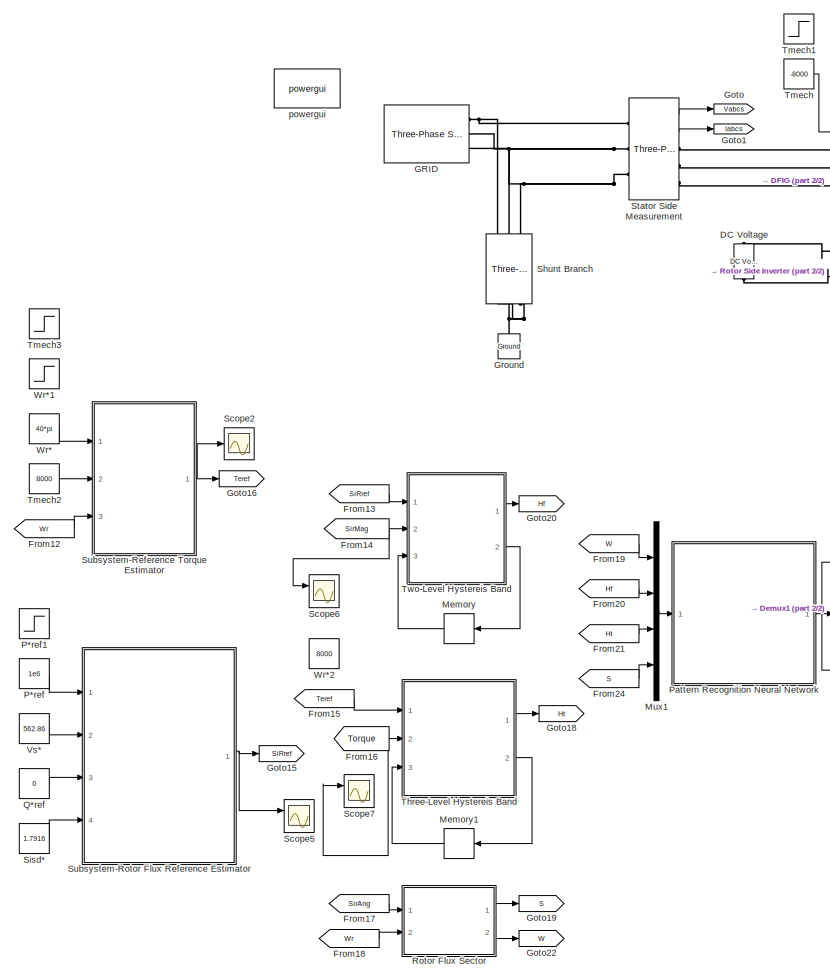
[diagram: root canvas - part 1/2, left side, full height]
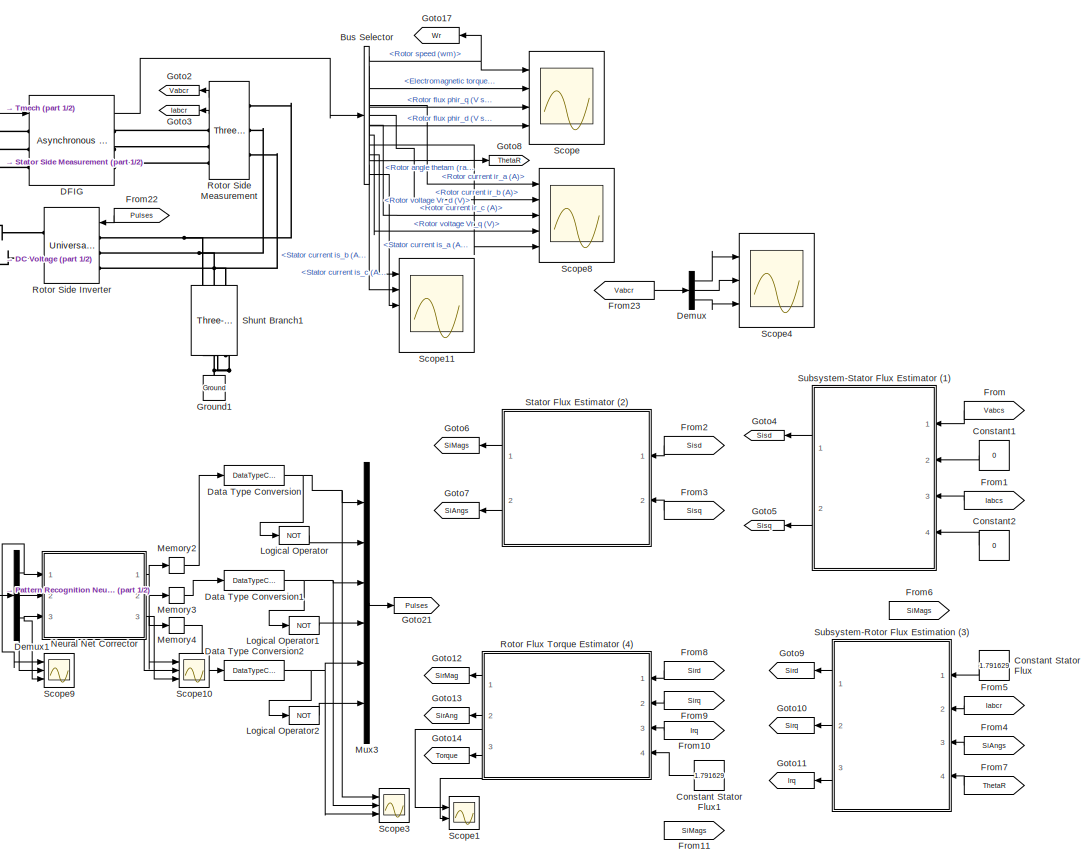
[diagram: root canvas - part 2/2, right side, full height]
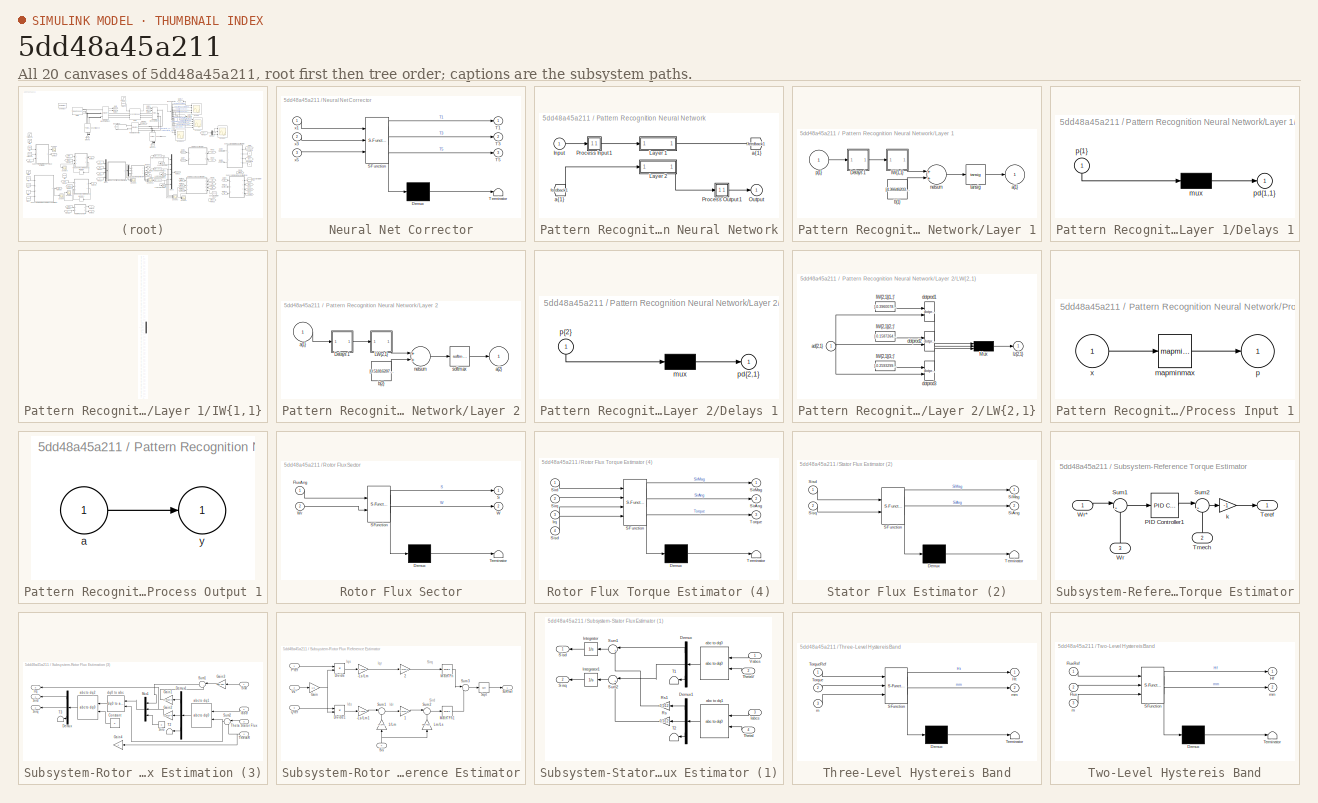
[diagram: thumbnail index - all 20 canvases of the model, root first then tree order]
MODEL slx_5dd48a45a211
KIND model
BLOCK [BusSelector] Bus Selector
  OutputSignals = Mechanical.Rotor speed (wm),Mechanical.Electromagnetic torque Te (N*m),Rotor measurements.Rotor flux phir_q (V s),Rotor measurements.Rotor flux phir_d (V s),Mechanical.Rotor angle thetam (rad),Rotor measurements.Rotor current ir_a (A),Rotor measurements.Rotor current ir_b (A),Rotor measurements.Rotor current ir_c (A),Rotor measurements.Rotor voltage Vr_q (V),Rotor measurements.Rotor voltage Vr_d (...<+134ch>
  Ports = [1, 13]
BLOCK [Constant] Constant Stator Flux
  Value = 1.791629
BLOCK [Constant] Constant Stator Flux1
  Value = 1.791629
BLOCK [Constant] Constant1
  Value = 0
BLOCK [Constant] Constant2
  Value = 0
BLOCK [Reference] DC Voltage  REF=powerlib/Electrical
Sources/DC Voltage Source
  Amplitude = 1200
  Measurements = None
  Ports = [0, 0, 0, 0, 0, 1, 1]
  SourceBlock = powerlib/Electrical\nSources/DC Voltage Source
  SourceType = DC Voltage Source
BLOCK [Reference] DFIG  REF=powerlib/Machines/Asynchronous Machine
SI Units
  AttributesFormatString = \n
  Cage1 = [ 0.022 0.226/377]
  Cage2 = [ 0.022 0.226/377]
  InitialConditions = [1 0 0 0 0 0 0 0]
  IterativeModel = Trapezoidal non iterative
  Lm = 0.0135
  LoadFlowParameters = 1492000
  MeasurementBus = off
  Mechanical = [1000 30 2]
  MechanicalLoad = Torque Tm
  NominalParameters = [1.5e+06 690 50]
  Pmec = 0
  PolePairs = 2
  Ports = [1, 1, 0, 0, 0, 3, 3]
  PresetModel = No
  ReferenceFrame = Rotor
  Rotor = [0.021 0.0136]
  RotorType = Wound
  Saturation = [14.03593122, 27.81365428, 53.79336849, 72.68890987, 97.98006896, 148.6815601, 215.7428561, 302.9841135, 420.4778367 ; 230, 322, 414, 460, 506, 552, 598, 644, 690]
  ShowDetailedParameters = on
  SimulateSaturation = off
  SourceBlock = powerlib/Machines/Asynchronous Machine\nSI Units
  SourceType = Asynchronous Machine
  Stator = [0.012 0.0137]
  TsBlock = -1
  TsPowergui = 0
  Units = SI
BLOCK [DataTypeConversion] Data Type Conversion
  OutDataTypeStr = boolean
  RndMeth = Floor
  SaturateOnIntegerOverflow = off
BLOCK [DataTypeConversion] Data Type Conversion1
  OutDataTypeStr = boolean
  RndMeth = Floor
  SaturateOnIntegerOverflow = off
BLOCK [DataTypeConversion] Data Type Conversion2
  OutDataTypeStr = boolean
  RndMeth = Floor
  SaturateOnIntegerOverflow = off
BLOCK [Demux] Demux
  DisplayOption = bar
  Outputs = 3
  Ports = [1, 3]
BLOCK [Demux] Demux1
  DisplayOption = bar
  Outputs = 3
  Ports = [1, 3]
BLOCK [From] From
  GotoTag = Vabcs
  TagVisibility = global
BLOCK [From] From1
  GotoTag = Iabcs
  TagVisibility = global
BLOCK [From] From10
  GotoTag = Irq
  TagVisibility = global
BLOCK [From] From11
  GotoTag = SiMags
  TagVisibility = global
BLOCK [From] From12
  GotoTag = Wr
  TagVisibility = global
BLOCK [From] From13
  GotoTag = SiRref
  TagVisibility = global
BLOCK [From] From14
  GotoTag = SirMag
  TagVisibility = global
BLOCK [From] From15
  GotoTag = Teref
  TagVisibility = global
BLOCK [From] From16
  GotoTag = Torque
  TagVisibility = global
BLOCK [From] From17
  GotoTag = SirAng
  TagVisibility = global
BLOCK [From] From18
  GotoTag = Wr
  TagVisibility = global
BLOCK [From] From19
  GotoTag = W
  TagVisibility = global
BLOCK [From] From2
  GotoTag = Sisd
  TagVisibility = global
BLOCK [From] From20
  GotoTag = Hf
  TagVisibility = global
BLOCK [From] From21
  GotoTag = Ht
  TagVisibility = global
BLOCK [From] From22
  GotoTag = Pulses
  TagVisibility = global
BLOCK [From] From23
  GotoTag = Vabcr
  TagVisibility = global
BLOCK [From] From24
  GotoTag = S
  TagVisibility = global
BLOCK [From] From3
  GotoTag = Sisq
  TagVisibility = global
BLOCK [From] From4
  GotoTag = SiAngs
  TagVisibility = global
BLOCK [From] From5
  GotoTag = Iabcr
  TagVisibility = global
BLOCK [From] From6
  GotoTag = SiMags
  TagVisibility = global
BLOCK [From] From7
  GotoTag = ThetaR
  TagVisibility = global
BLOCK [From] From8
  GotoTag = Sird
  TagVisibility = global
BLOCK [From] From9
  GotoTag = Sirq
  TagVisibility = global
BLOCK [Reference] GRID  REF=powerlib/Electrical
Sources/Three-Phase Source
  BaseVoltage = 398
  BusType = swing
  Frequency = 50
  Inductance = 0
  InternalConnection = Yg
  PhaseAngle = 0
  Ports = [0, 0, 0, 0, 0, 0, 3]
  Pref = 0
  Qmax = inf
  Qmin = -inf
  Qref = 0
  Resistance = 0
  ShortCircuitLevel = 100e6
  SourceBlock = powerlib/Electrical\nSources/Three-Phase Source
  SourceType = Three-Phase Source
  SpecifyImpedance = off
  Voltage = 25e3
  XRratio = 7
BLOCK [Goto] Goto
  GotoTag = Vabcs
  TagVisibility = global
BLOCK [Goto] Goto1
  GotoTag = Iabcs
  TagVisibility = global
BLOCK [Goto] Goto10
  GotoTag = Sirq
  TagVisibility = global
BLOCK [Goto] Goto11
  GotoTag = Irq
  TagVisibility = global
BLOCK [Goto] Goto12
  GotoTag = SirMag
  TagVisibility = global
BLOCK [Goto] Goto13
  GotoTag = SirAng
  TagVisibility = global
BLOCK [Goto] Goto14
  GotoTag = Torque
  TagVisibility = global
BLOCK [Goto] Goto15
  GotoTag = SiRref
  TagVisibility = global
BLOCK [Goto] Goto16
  GotoTag = Teref
  TagVisibility = global
BLOCK [Goto] Goto17
  GotoTag = Wr
  TagVisibility = global
BLOCK [Goto] Goto18
  GotoTag = Ht
  TagVisibility = global
BLOCK [Goto] Goto19
  GotoTag = S
  TagVisibility = global
BLOCK [Goto] Goto2
  GotoTag = Vabcr
  TagVisibility = global
BLOCK [Goto] Goto20
  GotoTag = Hf
  TagVisibility = global
BLOCK [Goto] Goto21
  GotoTag = Pulses
  TagVisibility = global
BLOCK [Goto] Goto22
  GotoTag = W
  TagVisibility = global
BLOCK [Goto] Goto3
  GotoTag = Iabcr
  TagVisibility = global
BLOCK [Goto] Goto4
  GotoTag = Sisd
  TagVisibility = global
BLOCK [Goto] Goto5
  GotoTag = Sisq
  TagVisibility = global
BLOCK [Goto] Goto6
  GotoTag = SiMags
  TagVisibility = global
BLOCK [Goto] Goto7
  GotoTag = SiAngs
  TagVisibility = global
BLOCK [Goto] Goto8
  GotoTag = ThetaR
  TagVisibility = global
BLOCK [Goto] Goto9
  GotoTag = Sird
  TagVisibility = global
BLOCK [Reference] Ground  REF=powerlib/Elements/Ground
  LConnTagsString = a
  Ports = [0, 0, 0, 0, 0, 1]
  SourceBlock = powerlib/Elements/Ground
  SourceType = Ground
BLOCK [Reference] Ground1  REF=powerlib/Elements/Ground
  LConnTagsString = a
  Ports = [0, 0, 0, 0, 0, 1]
  SourceBlock = powerlib/Elements/Ground
  SourceType = Ground
BLOCK [Logic] Logical Operator
  AllPortsSameDT = off
  Operator = NOT
  OutDataTypeStr = boolean
  Ports = [1, 1]
BLOCK [Logic] Logical Operator1
  AllPortsSameDT = off
  Operator = NOT
  OutDataTypeStr = boolean
  Ports = [1, 1]
BLOCK [Logic] Logical Operator2
  AllPortsSameDT = off
  Operator = NOT
  OutDataTypeStr = boolean
  Ports = [1, 1]
BLOCK [Memory] Memory
  X0 = 1
BLOCK [Memory] Memory1
  X0 = 1
BLOCK [Memory] Memory2
  X0 = 1
BLOCK [Memory] Memory3
BLOCK [Memory] Memory4
BLOCK [Mux] Mux1
  DisplayOption = bar
  Ports = [4, 1]
BLOCK [Mux] Mux3
  DisplayOption = bar
  Inputs = 6
  Ports = [6, 1]
BLOCK [SubSystem] Neural Net Corrector
  ErrorFcn = Stateflow.Translate.translate
  PermitHierarchicalResolution = ExplicitOnly
  Ports = [3, 3]
  RequestExecContextInheritance = off
  SFBlockType = MATLAB Function
  TreatAsAtomicUnit = on
BLOCK [Demux] Neural Net Corrector/ Demux 
  Outputs = 1
  Ports = [1, 1]
BLOCK [S-Function] Neural Net Corrector/ SFunction 
  EnableBusSupport = on
  FunctionName = sf_sfun
  PortCounts = [3 4]
  Ports = [3, 4]
  Tag = Stateflow S-Function dfig_dtc_ann 6
BLOCK [Terminator] Neural Net Corrector/ Terminator 
BLOCK [Outport] Neural Net Corrector/T1
  IconDisplay = Port number
BLOCK [Outport] Neural Net Corrector/T3
  IconDisplay = Port number
  Port = 2
BLOCK [Outport] Neural Net Corrector/T5
  IconDisplay = Port number
  Port = 3
BLOCK [Inport] Neural Net Corrector/x1
  IconDisplay = Port number
BLOCK [Inport] Neural Net Corrector/x3
  IconDisplay = Port number
  Port = 2
BLOCK [Inport] Neural Net Corrector/x5
  IconDisplay = Port number
  Port = 3
BLOCK [Constant] P*ref
  Value = 1e6
BLOCK [Step] P*ref1
  After = 1e6
  SampleTime = 0
  Time = 0.5
BLOCK [SubSystem] Pattern Recognition Neural Network
  Ports = [1, 1]
  RequestExecContextInheritance = off
BLOCK [From] Pattern Recognition Neural Network/ a{1} 
  GotoTag = feedback1
BLOCK [Inport] Pattern Recognition Neural Network/Input
  IconDisplay = Port number
  PortDimensions = 4
BLOCK [SubSystem] Pattern Recognition Neural Network/Layer 1
  Ports = [1, 1]
  RequestExecContextInheritance = off
BLOCK [SubSystem] Pattern Recognition Neural Network/Layer 1/Delays 1
  Ports = [1, 1]
  RequestExecContextInheritance = off
BLOCK [Mux] Pattern Recognition Neural Network/Layer 1/Delays 1/mux
  Inputs = 1
  Ports = [1, 1]
BLOCK [Outport] Pattern Recognition Neural Network/Layer 1/Delays 1/pd{1,1}
  IconDisplay = Port number
BLOCK [Inport] Pattern Recognition Neural Network/Layer 1/Delays 1/p{1}
  IconDisplay = Port number
  PortDimensions = 4
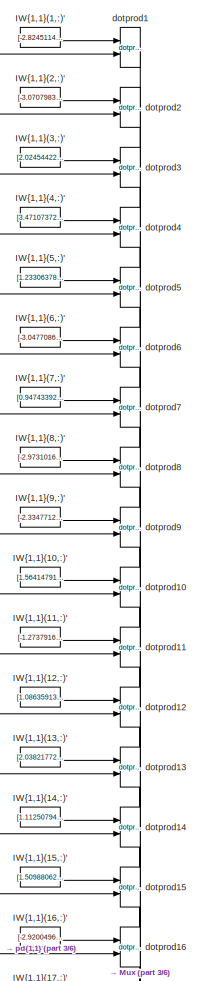
[diagram: Pattern Recognition Neural Network/Layer 1/IW{1,1} - part 1/6, top center region]
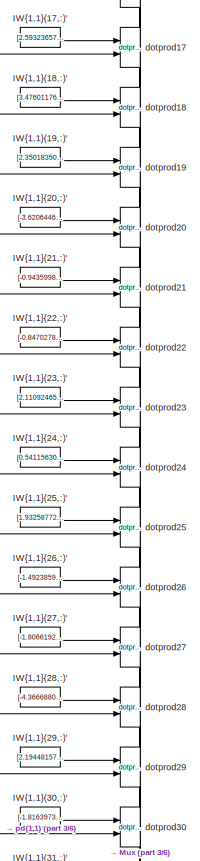
[diagram: Pattern Recognition Neural Network/Layer 1/IW{1,1} - part 2/6, top center region]
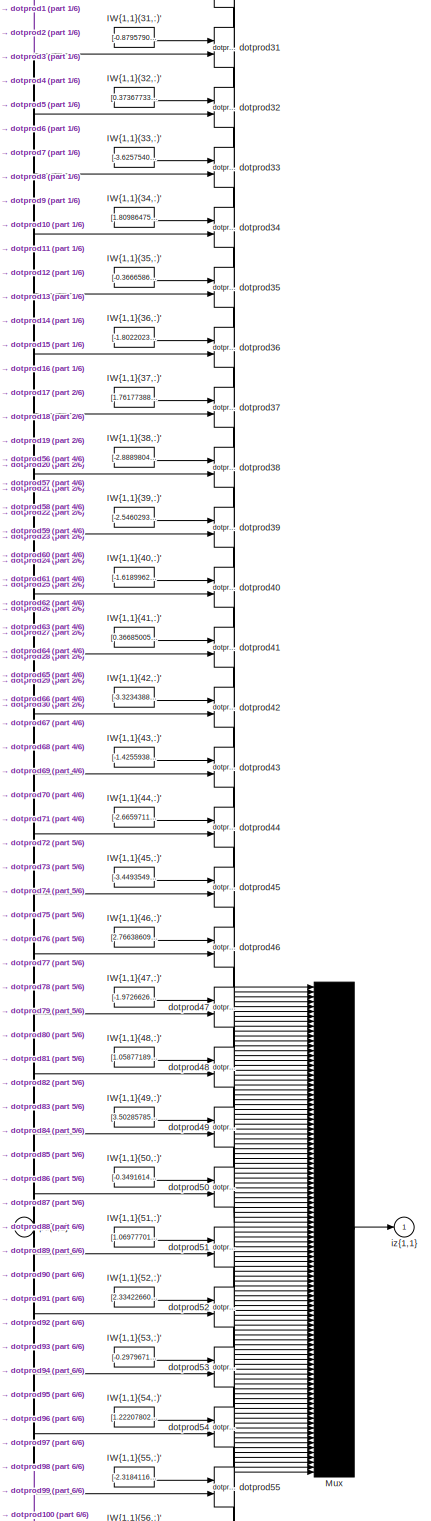
[diagram: Pattern Recognition Neural Network/Layer 1/IW{1,1} - part 3/6, full width, middle band]
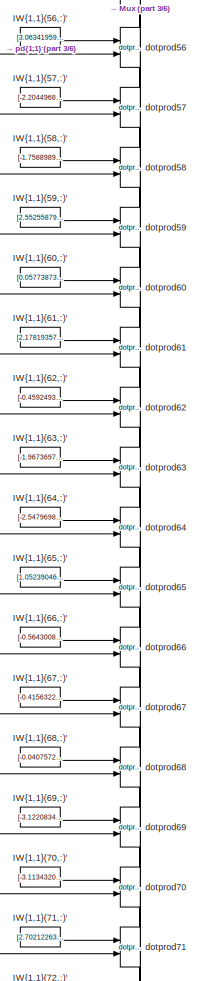
[diagram: Pattern Recognition Neural Network/Layer 1/IW{1,1} - part 4/6, central region]
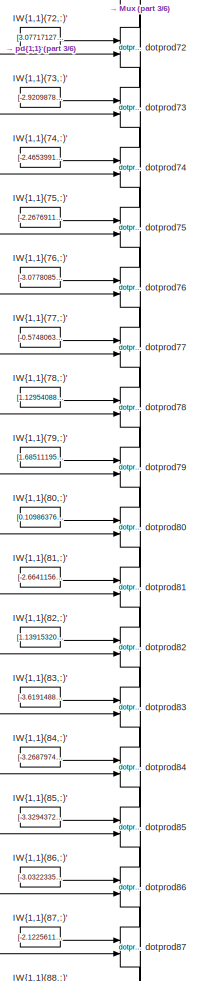
[diagram: Pattern Recognition Neural Network/Layer 1/IW{1,1} - part 5/6, bottom center region]
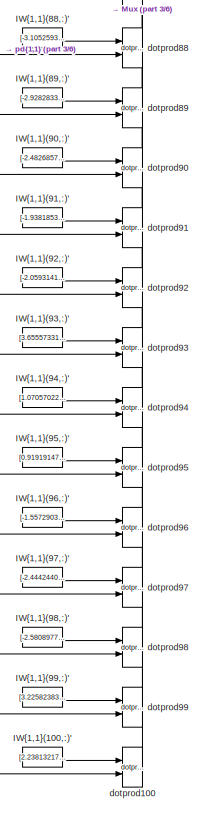
[diagram: Pattern Recognition Neural Network/Layer 1/IW{1,1} - part 6/6, bottom center region]
BLOCK [SubSystem] Pattern Recognition Neural Network/Layer 1/IW{1,1}
  Ports = [1, 1]
  RequestExecContextInheritance = off
BLOCK [Constant] Pattern Recognition Neural Network/Layer 1/IW{1,1}/IW{1,1}(1,:)'
  Value = [-2.8245114386849695;0.38651486208686725;2.9357228347405564;-1.8061070535376862]
BLOCK [Constant] Pattern Recognition Neural Network/Layer 1/IW{1,1}/IW{1,1}(10,:)'
  Value = [1.5641479167763546;2.1621989909151043;1.2285768636088201;3.2321786561007295]
BLOCK [Constant] Pattern Recognition Neural Network/Layer 1/IW{1,1}/IW{1,1}(100,:)'
  Value = [2.2381321796131246;1.2861007289612707;-0.67730023760817171;3.5572780668831947]
BLOCK [Constant] Pattern Recognition Neural Network/Layer 1/IW{1,1}/IW{1,1}(11,:)'
  Value = [-1.2737916108243736;-0.64018074012753978;-0.93801497415751367;-3.7475199961202277]
BLOCK [Constant] Pattern Recognition Neural Network/Layer 1/IW{1,1}/IW{1,1}(12,:)'
  Value = [1.0863591392174892;3.4611134525989322;-2.3454584130887262;-0.93943288148967696]
BLOCK [Constant] Pattern Recognition Neural Network/Layer 1/IW{1,1}/IW{1,1}(13,:)'
  Value = [2.038217720726375;-0.74327641015251389;-3.4075352872823133;1.4331081962686845]
BLOCK [Constant] Pattern Recognition Neural Network/Layer 1/IW{1,1}/IW{1,1}(14,:)'
  Value = [1.1125079489917162;2.229004972857656;-0.84354264288793723;3.6781251427883253]
BLOCK [Constant] Pattern Recognition Neural Network/Layer 1/IW{1,1}/IW{1,1}(15,:)'
  Value = [1.5098806266080216;-2.355964575198696;-3.2035751992887893;-1.7658259175978845]
BLOCK [Constant] Pattern Recognition Neural Network/Layer 1/IW{1,1}/IW{1,1}(16,:)'
  Value = [-2.9200496568409702;-0.89397244103805096;2.1256680655356091;-2.5612600234195138]
BLOCK [Constant] Pattern Recognition Neural Network/Layer 1/IW{1,1}/IW{1,1}(17,:)'
  Value = [2.5932365787057754;-3.4242025042756752;-0.87688636234114425;1.348405505721253]
BLOCK [Constant] Pattern Recognition Neural Network/Layer 1/IW{1,1}/IW{1,1}(18,:)'
  Value = [3.4760117674047839;1.8202508345539326;2.2931511309542216;-0.013812715949637632]
BLOCK [Constant] Pattern Recognition Neural Network/Layer 1/IW{1,1}/IW{1,1}(19,:)'
  Value = [2.3501835025089122;3.0199759495895666;1.8207102049225898;0.86663191104687776]
BLOCK [Constant] Pattern Recognition Neural Network/Layer 1/IW{1,1}/IW{1,1}(2,:)'
  Value = [-3.0707983284067546;-1.2915293428849808;-0.37553303335606314;-2.946611774820024]
BLOCK [Constant] Pattern Recognition Neural Network/Layer 1/IW{1,1}/IW{1,1}(20,:)'
  Value = [-3.6206446977893414;-1.233422909538971;0.83001651074689053;-2.0788267931784787]
BLOCK [Constant] Pattern Recognition Neural Network/Layer 1/IW{1,1}/IW{1,1}(21,:)'
  Value = [-0.94359986834631659;1.3900630322159238;-2.8398202928775342;-3.0065032304187285]
BLOCK [Constant] Pattern Recognition Neural Network/Layer 1/IW{1,1}/IW{1,1}(22,:)'
  Value = [-0.84702782407684396;-1.4135809029977422;3.3017262364646975;2.4038201068290337]
BLOCK [Constant] Pattern Recognition Neural Network/Layer 1/IW{1,1}/IW{1,1}(23,:)'
  Value = [2.1109246584552923;0.48239374032481236;-2.6995878339454604;2.8087367201557534]
BLOCK [Constant] Pattern Recognition Neural Network/Layer 1/IW{1,1}/IW{1,1}(24,:)'
  Value = [0.54115630618563815;2.0671766808546308;2.5576214575895064;2.7910582347170756]
BLOCK [Constant] Pattern Recognition Neural Network/Layer 1/IW{1,1}/IW{1,1}(25,:)'
  Value = [1.9325877212033897;0.93820715889474293;-2.3125500760476272;-3.0903331501489637]
BLOCK [Constant] Pattern Recognition Neural Network/Layer 1/IW{1,1}/IW{1,1}(26,:)'
  Value = [-1.4923859450438615;-2.5530126646024693;-1.4123642039042619;-3.2983975181572376]
BLOCK [Constant] Pattern Recognition Neural Network/Layer 1/IW{1,1}/IW{1,1}(27,:)'
  Value = [-1.8066192760421027;-1.053502594734242;-3.0646869608676695;-2.6054407197364342]
BLOCK [Constant] Pattern Recognition Neural Network/Layer 1/IW{1,1}/IW{1,1}(28,:)'
  Value = [-4.3666880229567075;-0.31650701880203841;1.2051757127274934;0.064885225002123348]
BLOCK [Constant] Pattern Recognition Neural Network/Layer 1/IW{1,1}/IW{1,1}(29,:)'
  Value = [2.194481579009727;-0.62896064181213829;-2.8844467222673198;-2.4888568406448606]
BLOCK [Constant] Pattern Recognition Neural Network/Layer 1/IW{1,1}/IW{1,1}(3,:)'
  Value = [2.0245442290322146;-2.0999293225297602;-2.9319102832597728;-1.0665068121491679]
BLOCK [Constant] Pattern Recognition Neural Network/Layer 1/IW{1,1}/IW{1,1}(30,:)'
  Value = [-1.8163973057996732;-0.793760040605482;-2.9907583562894966;2.4713784106632994]
BLOCK [Constant] Pattern Recognition Neural Network/Layer 1/IW{1,1}/IW{1,1}(31,:)'
  Value = [-0.8795790560998864;0.19201939872298571;1.9436280336141103;-3.6422406409586019]
BLOCK [Constant] Pattern Recognition Neural Network/Layer 1/IW{1,1}/IW{1,1}(32,:)'
  Value = [0.37367733746291559;1.9912936635921834;-1.1943544672931707;-3.7879070736974456]
BLOCK [Constant] Pattern Recognition Neural Network/Layer 1/IW{1,1}/IW{1,1}(33,:)'
  Value = [-3.6257540987273615;-1.1856987231539056;2.0890415551080794;0.80106105979388853]
BLOCK [Constant] Pattern Recognition Neural Network/Layer 1/IW{1,1}/IW{1,1}(34,:)'
  Value = [1.8098647517743982;-0.3601599777346095;-1.8148213794129044;3.5416592516683254]
BLOCK [Constant] Pattern Recognition Neural Network/Layer 1/IW{1,1}/IW{1,1}(35,:)'
  Value = [-0.36665866256054969;-3.7734064538998018;1.1055422193891613;-2.0205668907088481]
BLOCK [Constant] Pattern Recognition Neural Network/Layer 1/IW{1,1}/IW{1,1}(36,:)'
  Value = [-1.8022023111788112;-2.8283784042767075;-2.5932012206163675;-1.5652629153836546]
BLOCK [Constant] Pattern Recognition Neural Network/Layer 1/IW{1,1}/IW{1,1}(37,:)'
  Value = [1.7617738820952624;-1.9054784616287705;3.3898435159870708;-0.85013188433445341]
BLOCK [Constant] Pattern Recognition Neural Network/Layer 1/IW{1,1}/IW{1,1}(38,:)'
  Value = [-2.8889804602041722;-1.2453603125352555;2.2919664900994294;-2.0121637751344044]
BLOCK [Constant] Pattern Recognition Neural Network/Layer 1/IW{1,1}/IW{1,1}(39,:)'
  Value = [-2.5460293686629627;1.8098199308931526;3.1124450572809539;0.17052440610148217]
BLOCK [Constant] Pattern Recognition Neural Network/Layer 1/IW{1,1}/IW{1,1}(4,:)'
  Value = [3.4710737248528858;1.0882768223767059;2.2916233085170359;2.2449733135272192]
BLOCK [Constant] Pattern Recognition Neural Network/Layer 1/IW{1,1}/IW{1,1}(40,:)'
  Value = [-1.6189962293711282;2.7651773783694997;1.7642592534839496;2.5427620204925399]
BLOCK [Constant] Pattern Recognition Neural Network/Layer 1/IW{1,1}/IW{1,1}(41,:)'
  Value = [0.36685005918595709;4.05338628754411;-1.1262898885311063;1.2804673233521298]
BLOCK [Constant] Pattern Recognition Neural Network/Layer 1/IW{1,1}/IW{1,1}(42,:)'
  Value = [-3.3234388104323913;-0.077649763970148375;1.1686794714913014;-2.8208855358937526]
BLOCK [Constant] Pattern Recognition Neural Network/Layer 1/IW{1,1}/IW{1,1}(43,:)'
  Value = [-1.425593834467229;-3.6898645994323833;1.0933309726961182;-1.6740737435437583]
BLOCK [Constant] Pattern Recognition Neural Network/Layer 1/IW{1,1}/IW{1,1}(44,:)'
  Value = [-2.665971144203394;1.7432125243486809;0.35488263071730192;-3.0348026423883288]
BLOCK [Constant] Pattern Recognition Neural Network/Layer 1/IW{1,1}/IW{1,1}(45,:)'
  Value = [-3.4493549558035586;2.0814076517768396;-1.9244635435482413;0.072515414853072377]
BLOCK [Constant] Pattern Recognition Neural Network/Layer 1/IW{1,1}/IW{1,1}(46,:)'
  Value = [2.7663860931035642;2.4022123559091084;-2.4386757695671801;-0.64616133371239726]
BLOCK [Constant] Pattern Recognition Neural Network/Layer 1/IW{1,1}/IW{1,1}(47,:)'
  Value = [-1.9726626037926451;2.0158040387864564;-0.29306745840281473;3.3319598867655764]
BLOCK [Constant] Pattern Recognition Neural Network/Layer 1/IW{1,1}/IW{1,1}(48,:)'
  Value = [1.058771898375219;-3.1260125319796628;-2.0925211842276332;2.1793350158457874]
BLOCK [Constant] Pattern Recognition Neural Network/Layer 1/IW{1,1}/IW{1,1}(49,:)'
  Value = [3.502857856487239;1.3820747336574504;2.3199536515686727;-0.3476083670572987]
BLOCK [Constant] Pattern Recognition Neural Network/Layer 1/IW{1,1}/IW{1,1}(5,:)'
  Value = [1.2330637880102504;3.5029417956145261;1.0647209871479517;2.1866263214281632]
BLOCK [Constant] Pattern Recognition Neural Network/Layer 1/IW{1,1}/IW{1,1}(50,:)'
  Value = [-0.34916143240769559;-0.31493324079946328;3.4987864848593913;2.6575690260893836]
BLOCK [Constant] Pattern Recognition Neural Network/Layer 1/IW{1,1}/IW{1,1}(51,:)'
  Value = [1.0697770113825351;-1.4439481713616922;-3.3805246871951065;-2.3333358676310576]
BLOCK [Constant] Pattern Recognition Neural Network/Layer 1/IW{1,1}/IW{1,1}(52,:)'
  Value = [2.3342266098897908;-3.6115457123083869;-0.032520333621359865;-1.1273498698402562]
BLOCK [Constant] Pattern Recognition Neural Network/Layer 1/IW{1,1}/IW{1,1}(53,:)'
  Value = [-0.29796719489536294;2.0995927091400524;-2.7516072661552426;2.7280078591027825]
BLOCK [Constant] Pattern Recognition Neural Network/Layer 1/IW{1,1}/IW{1,1}(54,:)'
  Value = [1.2220780272784197;-1.9297075481033654;2.4272859502753055;2.9448342399637015]
BLOCK [Constant] Pattern Recognition Neural Network/Layer 1/IW{1,1}/IW{1,1}(55,:)'
  Value = [-2.3184116141225481;-1.9783891724108036;2.904026544601189;1.3438391301438726]
BLOCK [Constant] Pattern Recognition Neural Network/Layer 1/IW{1,1}/IW{1,1}(56,:)'
  Value = [3.0634195910029209;1.194838717589473;-2.8429575492071506;0.86750178727260308]
BLOCK [Constant] Pattern Recognition Neural Network/Layer 1/IW{1,1}/IW{1,1}(57,:)'
  Value = [-2.2044968166038204;2.0502746006806114;3.0578237732741744;-1.2073871714453543]
BLOCK [Constant] Pattern Recognition Neural Network/Layer 1/IW{1,1}/IW{1,1}(58,:)'
  Value = [-1.7588989873557608;0.1282705572426823;-2.8844616213715462;2.8715090007577868]
BLOCK [Constant] Pattern Recognition Neural Network/Layer 1/IW{1,1}/IW{1,1}(59,:)'
  Value = [2.5525587973675297;1.6438898213973285;1.2492834504746733;-2.9948817693094592]
BLOCK [Constant] Pattern Recognition Neural Network/Layer 1/IW{1,1}/IW{1,1}(6,:)'
  Value = [-3.0477086116096661;-2.6477441484490867;-1.1615209443996468;1.6192270839191927]
BLOCK [Constant] Pattern Recognition Neural Network/Layer 1/IW{1,1}/IW{1,1}(60,:)'
  Value = [0.057738735558638281;-3.2796021568171843;2.1540920372835655;2.1597214375918128]
BLOCK [Constant] Pattern Recognition Neural Network/Layer 1/IW{1,1}/IW{1,1}(61,:)'
  Value = [2.178193574274494;3.6548694603426011;0.22292778048267128;1.2023859801879253]
BLOCK [Constant] Pattern Recognition Neural Network/Layer 1/IW{1,1}/IW{1,1}(62,:)'
  Value = [-0.4592493544217896;0.76901846192672174;3.2695900038403281;2.6945374963168147]
BLOCK [Constant] Pattern Recognition Neural Network/Layer 1/IW{1,1}/IW{1,1}(63,:)'
  Value = [-1.9673697181412577;1.6606134301136446;3.4885048113223314;-0.9181069100548771]
BLOCK [Constant] Pattern Recognition Neural Network/Layer 1/IW{1,1}/IW{1,1}(64,:)'
  Value = [-2.5479698972063956;-3.1344085367844774;1.1815436213587516;1.6990118542432682]
BLOCK [Constant] Pattern Recognition Neural Network/Layer 1/IW{1,1}/IW{1,1}(65,:)'
  Value = [1.0523904626513947;2.1199794031499684;-2.940932749253184;2.1298450182663631]
BLOCK [Constant] Pattern Recognition Neural Network/Layer 1/IW{1,1}/IW{1,1}(66,:)'
  Value = [-0.56430083590262026;2.2877343007784452;-3.1656977846033962;-2.1911697326044726]
BLOCK [Constant] Pattern Recognition Neural Network/Layer 1/IW{1,1}/IW{1,1}(67,:)'
  Value = [-0.41563223270685523;-3.6481772507274304;-2.499018094010296;0.88017479569876789]
BLOCK [Constant] Pattern Recognition Neural Network/Layer 1/IW{1,1}/IW{1,1}(68,:)'
  Value = [-0.040757296581099292;-0.051959224539479584;-3.0071917694146353;3.1885155738914133]
BLOCK [Constant] Pattern Recognition Neural Network/Layer 1/IW{1,1}/IW{1,1}(69,:)'
  Value = [-3.1220834086475415;-1.1995851824560306;-2.8551383403010262;0.027287262866671803]
BLOCK [Constant] Pattern Recognition Neural Network/Layer 1/IW{1,1}/IW{1,1}(7,:)'
  Value = [0.94743392846687613;-1.5264771966283808;3.2353519375426081;-2.6424893486036507]
BLOCK [Constant] Pattern Recognition Neural Network/Layer 1/IW{1,1}/IW{1,1}(70,:)'
  Value = [-3.1134320515728526;0.55152231468255652;1.626548174102447;-2.5412538809319418]
BLOCK [Constant] Pattern Recognition Neural Network/Layer 1/IW{1,1}/IW{1,1}(71,:)'
  Value = [2.7021226366716631;-0.50541974330884998;3.281135676371532;0.96523132208148366]
BLOCK [Constant] Pattern Recognition Neural Network/Layer 1/IW{1,1}/IW{1,1}(72,:)'
  Value = [3.0771712744009538;-1.1959756870303857;-2.6252521627199141;-1.9153915552309482]
BLOCK [Constant] Pattern Recognition Neural Network/Layer 1/IW{1,1}/IW{1,1}(73,:)'
  Value = [-2.9209878657205688;-2.4349859161372023;-0.76305015013136013;1.9204971092528562]
BLOCK [Constant] Pattern Recognition Neural Network/Layer 1/IW{1,1}/IW{1,1}(74,:)'
  Value = [-2.4653991228308079;-1.7105145442677634;3.2391796573974223;-0.67005980680343558]
BLOCK [Constant] Pattern Recognition Neural Network/Layer 1/IW{1,1}/IW{1,1}(75,:)'
  Value = [-2.267691175126231;-3.0399694931462928;2.4392358260976867;-0.060355799974554432]
BLOCK [Constant] Pattern Recognition Neural Network/Layer 1/IW{1,1}/IW{1,1}(76,:)'
  Value = [-3.0778085267845761;2.6958634787735165;0.95162145531187281;1.2382727207038637]
BLOCK [Constant] Pattern Recognition Neural Network/Layer 1/IW{1,1}/IW{1,1}(77,:)'
  Value = [-0.57480630863031568;0.90426032196326522;3.1968278764569682;2.89941091860676]
BLOCK [Constant] Pattern Recognition Neural Network/Layer 1/IW{1,1}/IW{1,1}(78,:)'
  Value = [1.1295408820054786;3.4476711829344269;2.2934005080284012;-1.1566168662486918]
BLOCK [Constant] Pattern Recognition Neural Network/Layer 1/IW{1,1}/IW{1,1}(79,:)'
  Value = [1.6851119552077096;-2.80984434744519;-1.2586144336096357;2.4927763981918165]
BLOCK [Constant] Pattern Recognition Neural Network/Layer 1/IW{1,1}/IW{1,1}(8,:)'
  Value = [-2.9731016579738578;-0.46072176498173123;-1.8869427250129074;2.9487485580196626]
BLOCK [Constant] Pattern Recognition Neural Network/Layer 1/IW{1,1}/IW{1,1}(80,:)'
  Value = [0.10986376103259864;3.6289351130998431;1.5884413614391659;1.9626966449394632]
BLOCK [Constant] Pattern Recognition Neural Network/Layer 1/IW{1,1}/IW{1,1}(81,:)'
  Value = [-2.6641156528215735;0.95494374564848061;-2.3132286629283572;2.7435234802742903]
BLOCK [Constant] Pattern Recognition Neural Network/Layer 1/IW{1,1}/IW{1,1}(82,:)'
  Value = [1.1391532079316229;0.95471771045647935;-1.892605865014519;-4.033224416235214]
BLOCK [Constant] Pattern Recognition Neural Network/Layer 1/IW{1,1}/IW{1,1}(83,:)'
  Value = [-3.6191488264791936;-0.46250365175756186;1.9945774416328388;-1.4515216701912226]
BLOCK [Constant] Pattern Recognition Neural Network/Layer 1/IW{1,1}/IW{1,1}(84,:)'
  Value = [-3.2687974301995197;-2.229172771515382;0.16194897995758317;1.5825906958523899]
BLOCK [Constant] Pattern Recognition Neural Network/Layer 1/IW{1,1}/IW{1,1}(85,:)'
  Value = [-3.3294372820830271;2.088957598708773;-0.73365016977139019;-1.9798481458784989]
BLOCK [Constant] Pattern Recognition Neural Network/Layer 1/IW{1,1}/IW{1,1}(86,:)'
  Value = [-3.0322335699285654;-2.2132193860281379;0.90451349582500817;-2.1428092983564366]
BLOCK [Constant] Pattern Recognition Neural Network/Layer 1/IW{1,1}/IW{1,1}(87,:)'
  Value = [-2.1225611025930413;-2.9757797162472035;1.7799430128429783;1.5299502626769723]
BLOCK [Constant] Pattern Recognition Neural Network/Layer 1/IW{1,1}/IW{1,1}(88,:)'
  Value = [-3.1052593198151142;2.9451991532964756;0.75370274615210042;1.1534516394237804]
BLOCK [Constant] Pattern Recognition Neural Network/Layer 1/IW{1,1}/IW{1,1}(89,:)'
  Value = [-2.9282833972889426;2.5711191100725528;0.88631963370768463;1.6765606849879042]
BLOCK [Constant] Pattern Recognition Neural Network/Layer 1/IW{1,1}/IW{1,1}(9,:)'
  Value = [-2.3347712750275709;-2.5247476204767958;0.89513823018432215;2.5579987960539814]
BLOCK [Constant] Pattern Recognition Neural Network/Layer 1/IW{1,1}/IW{1,1}(90,:)'
  Value = [-2.4826857353762612;2.7732041852642317;1.0472839174135899;2.101112058062927]
BLOCK [Constant] Pattern Recognition Neural Network/Layer 1/IW{1,1}/IW{1,1}(91,:)'
  Value = [-1.9381853011012768;1.3382308239612077;0.23677830915049275;-3.3232319715429695]
BLOCK [Constant] Pattern Recognition Neural Network/Layer 1/IW{1,1}/IW{1,1}(92,:)'
  Value = [-2.059314103562278;-0.63135864767261363;-3.7238104986201623;-1.4742963155907849]
BLOCK [Constant] Pattern Recognition Neural Network/Layer 1/IW{1,1}/IW{1,1}(93,:)'
  Value = [3.6555733118344174;-1.0732304542677928;2.2046184298100031;-0.16206159695540243]
BLOCK [Constant] Pattern Recognition Neural Network/Layer 1/IW{1,1}/IW{1,1}(94,:)'
  Value = [1.070570223833659;2.0357455912007598;3.3433477604916071;-1.4051299173259166]
BLOCK [Constant] Pattern Recognition Neural Network/Layer 1/IW{1,1}/IW{1,1}(95,:)'
  Value = [0.91919147758033382;-2.5336680739095385;-2.0680080299762547;2.879707747586568]
BLOCK [Constant] Pattern Recognition Neural Network/Layer 1/IW{1,1}/IW{1,1}(96,:)'
  Value = [-1.557290353624005;2.2299914711758486;2.8053991186234932;1.9465335027755257]
BLOCK [Constant] Pattern Recognition Neural Network/Layer 1/IW{1,1}/IW{1,1}(97,:)'
  Value = [-2.4442440140735502;2.6416920517144078;-1.4914788489089772;-2.0162845699389651]
BLOCK [Constant] Pattern Recognition Neural Network/Layer 1/IW{1,1}/IW{1,1}(98,:)'
  Value = [-2.5808977950520728;2.3569876058987962;2.2791107048880446;1.3095540569000563]
BLOCK [Constant] Pattern Recognition Neural Network/Layer 1/IW{1,1}/IW{1,1}(99,:)'
  Value = [3.2258238354720539;-0.33147016355240222;-0.43368942172234409;-2.9950075796368889]
BLOCK [Mux] Pattern Recognition Neural Network/Layer 1/IW{1,1}/Mux
  Inputs = 100
  Ports = [100, 1]
BLOCK [Reference] Pattern Recognition Neural Network/Layer 1/IW{1,1}/dotprod1  REF=neural/Weight Functions/dotprod
  Ports = [2, 1]
  SourceBlock = neural/Weight Functions/dotprod
  SourceType = DOTPROD
BLOCK [Reference] Pattern Recognition Neural Network/Layer 1/IW{1,1}/dotprod10  REF=neural/Weight Functions/dotprod
  Ports = [2, 1]
  SourceBlock = neural/Weight Functions/dotprod
  SourceType = DOTPROD
BLOCK [Reference] Pattern Recognition Neural Network/Layer 1/IW{1,1}/dotprod100  REF=neural/Weight Functions/dotprod
  Ports = [2, 1]
  SourceBlock = neural/Weight Functions/dotprod
  SourceType = DOTPROD
BLOCK [Reference] Pattern Recognition Neural Network/Layer 1/IW{1,1}/dotprod11  REF=neural/Weight Functions/dotprod
  Ports = [2, 1]
  SourceBlock = neural/Weight Functions/dotprod
  SourceType = DOTPROD
BLOCK [Reference] Pattern Recognition Neural Network/Layer 1/IW{1,1}/dotprod12  REF=neural/Weight Functions/dotprod
  Ports = [2, 1]
  SourceBlock = neural/Weight Functions/dotprod
  SourceType = DOTPROD
BLOCK [Reference] Pattern Recognition Neural Network/Layer 1/IW{1,1}/dotprod13  REF=neural/Weight Functions/dotprod
  Ports = [2, 1]
  SourceBlock = neural/Weight Functions/dotprod
  SourceType = DOTPROD
BLOCK [Reference] Pattern Recognition Neural Network/Layer 1/IW{1,1}/dotprod14  REF=neural/Weight Functions/dotprod
  Ports = [2, 1]
  SourceBlock = neural/Weight Functions/dotprod
  SourceType = DOTPROD
BLOCK [Reference] Pattern Recognition Neural Network/Layer 1/IW{1,1}/dotprod15  REF=neural/Weight Functions/dotprod
  Ports = [2, 1]
  SourceBlock = neural/Weight Functions/dotprod
  SourceType = DOTPROD
BLOCK [Reference] Pattern Recognition Neural Network/Layer 1/IW{1,1}/dotprod16  REF=neural/Weight Functions/dotprod
  Ports = [2, 1]
  SourceBlock = neural/Weight Functions/dotprod
  SourceType = DOTPROD
BLOCK [Reference] Pattern Recognition Neural Network/Layer 1/IW{1,1}/dotprod17  REF=neural/Weight Functions/dotprod
  Ports = [2, 1]
  SourceBlock = neural/Weight Functions/dotprod
  SourceType = DOTPROD
BLOCK [Reference] Pattern Recognition Neural Network/Layer 1/IW{1,1}/dotprod18  REF=neural/Weight Functions/dotprod
  Ports = [2, 1]
  SourceBlock = neural/Weight Functions/dotprod
  SourceType = DOTPROD
BLOCK [Reference] Pattern Recognition Neural Network/Layer 1/IW{1,1}/dotprod19  REF=neural/Weight Functions/dotprod
  Ports = [2, 1]
  SourceBlock = neural/Weight Functions/dotprod
  SourceType = DOTPROD
BLOCK [Reference] Pattern Recognition Neural Network/Layer 1/IW{1,1}/dotprod2  REF=neural/Weight Functions/dotprod
  Ports = [2, 1]
  SourceBlock = neural/Weight Functions/dotprod
  SourceType = DOTPROD
BLOCK [Reference] Pattern Recognition Neural Network/Layer 1/IW{1,1}/dotprod20  REF=neural/Weight Functions/dotprod
  Ports = [2, 1]
  SourceBlock = neural/Weight Functions/dotprod
  SourceType = DOTPROD
BLOCK [Reference] Pattern Recognition Neural Network/Layer 1/IW{1,1}/dotprod21  REF=neural/Weight Functions/dotprod
  Ports = [2, 1]
  SourceBlock = neural/Weight Functions/dotprod
  SourceType = DOTPROD
BLOCK [Reference] Pattern Recognition Neural Network/Layer 1/IW{1,1}/dotprod22  REF=neural/Weight Functions/dotprod
  Ports = [2, 1]
  SourceBlock = neural/Weight Functions/dotprod
  SourceType = DOTPROD
BLOCK [Reference] Pattern Recognition Neural Network/Layer 1/IW{1,1}/dotprod23  REF=neural/Weight Functions/dotprod
  Ports = [2, 1]
  SourceBlock = neural/Weight Functions/dotprod
  SourceType = DOTPROD
BLOCK [Reference] Pattern Recognition Neural Network/Layer 1/IW{1,1}/dotprod24  REF=neural/Weight Functions/dotprod
  Ports = [2, 1]
  SourceBlock = neural/Weight Functions/dotprod
  SourceType = DOTPROD
BLOCK [Reference] Pattern Recognition Neural Network/Layer 1/IW{1,1}/dotprod25  REF=neural/Weight Functions/dotprod
  Ports = [2, 1]
  SourceBlock = neural/Weight Functions/dotprod
  SourceType = DOTPROD
BLOCK [Reference] Pattern Recognition Neural Network/Layer 1/IW{1,1}/dotprod26  REF=neural/Weight Functions/dotprod
  Ports = [2, 1]
  SourceBlock = neural/Weight Functions/dotprod
  SourceType = DOTPROD
BLOCK [Reference] Pattern Recognition Neural Network/Layer 1/IW{1,1}/dotprod27  REF=neural/Weight Functions/dotprod
  Ports = [2, 1]
  SourceBlock = neural/Weight Functions/dotprod
  SourceType = DOTPROD
BLOCK [Reference] Pattern Recognition Neural Network/Layer 1/IW{1,1}/dotprod28  REF=neural/Weight Functions/dotprod
  Ports = [2, 1]
  SourceBlock = neural/Weight Functions/dotprod
  SourceType = DOTPROD
BLOCK [Reference] Pattern Recognition Neural Network/Layer 1/IW{1,1}/dotprod29  REF=neural/Weight Functions/dotprod
  Ports = [2, 1]
  SourceBlock = neural/Weight Functions/dotprod
  SourceType = DOTPROD
BLOCK [Reference] Pattern Recognition Neural Network/Layer 1/IW{1,1}/dotprod3  REF=neural/Weight Functions/dotprod
  Ports = [2, 1]
  SourceBlock = neural/Weight Functions/dotprod
  SourceType = DOTPROD
BLOCK [Reference] Pattern Recognition Neural Network/Layer 1/IW{1,1}/dotprod30  REF=neural/Weight Functions/dotprod
  Ports = [2, 1]
  SourceBlock = neural/Weight Functions/dotprod
  SourceType = DOTPROD
BLOCK [Reference] Pattern Recognition Neural Network/Layer 1/IW{1,1}/dotprod31  REF=neural/Weight Functions/dotprod
  Ports = [2, 1]
  SourceBlock = neural/Weight Functions/dotprod
  SourceType = DOTPROD
BLOCK [Reference] Pattern Recognition Neural Network/Layer 1/IW{1,1}/dotprod32  REF=neural/Weight Functions/dotprod
  Ports = [2, 1]
  SourceBlock = neural/Weight Functions/dotprod
  SourceType = DOTPROD
BLOCK [Reference] Pattern Recognition Neural Network/Layer 1/IW{1,1}/dotprod33  REF=neural/Weight Functions/dotprod
  Ports = [2, 1]
  SourceBlock = neural/Weight Functions/dotprod
  SourceType = DOTPROD
BLOCK [Reference] Pattern Recognition Neural Network/Layer 1/IW{1,1}/dotprod34  REF=neural/Weight Functions/dotprod
  Ports = [2, 1]
  SourceBlock = neural/Weight Functions/dotprod
  SourceType = DOTPROD
BLOCK [Reference] Pattern Recognition Neural Network/Layer 1/IW{1,1}/dotprod35  REF=neural/Weight Functions/dotprod
  Ports = [2, 1]
  SourceBlock = neural/Weight Functions/dotprod
  SourceType = DOTPROD
BLOCK [Reference] Pattern Recognition Neural Network/Layer 1/IW{1,1}/dotprod36  REF=neural/Weight Functions/dotprod
  Ports = [2, 1]
  SourceBlock = neural/Weight Functions/dotprod
  SourceType = DOTPROD
BLOCK [Reference] Pattern Recognition Neural Network/Layer 1/IW{1,1}/dotprod37  REF=neural/Weight Functions/dotprod
  Ports = [2, 1]
  SourceBlock = neural/Weight Functions/dotprod
  SourceType = DOTPROD
BLOCK [Reference] Pattern Recognition Neural Network/Layer 1/IW{1,1}/dotprod38  REF=neural/Weight Functions/dotprod
  Ports = [2, 1]
  SourceBlock = neural/Weight Functions/dotprod
  SourceType = DOTPROD
BLOCK [Reference] Pattern Recognition Neural Network/Layer 1/IW{1,1}/dotprod39  REF=neural/Weight Functions/dotprod
  Ports = [2, 1]
  SourceBlock = neural/Weight Functions/dotprod
  SourceType = DOTPROD
BLOCK [Reference] Pattern Recognition Neural Network/Layer 1/IW{1,1}/dotprod4  REF=neural/Weight Functions/dotprod
  Ports = [2, 1]
  SourceBlock = neural/Weight Functions/dotprod
  SourceType = DOTPROD
BLOCK [Reference] Pattern Recognition Neural Network/Layer 1/IW{1,1}/dotprod40  REF=neural/Weight Functions/dotprod
  Ports = [2, 1]
  SourceBlock = neural/Weight Functions/dotprod
  SourceType = DOTPROD
BLOCK [Reference] Pattern Recognition Neural Network/Layer 1/IW{1,1}/dotprod41  REF=neural/Weight Functions/dotprod
  Ports = [2, 1]
  SourceBlock = neural/Weight Functions/dotprod
  SourceType = DOTPROD
BLOCK [Reference] Pattern Recognition Neural Network/Layer 1/IW{1,1}/dotprod42  REF=neural/Weight Functions/dotprod
  Ports = [2, 1]
  SourceBlock = neural/Weight Functions/dotprod
  SourceType = DOTPROD
BLOCK [Reference] Pattern Recognition Neural Network/Layer 1/IW{1,1}/dotprod43  REF=neural/Weight Functions/dotprod
  Ports = [2, 1]
  SourceBlock = neural/Weight Functions/dotprod
  SourceType = DOTPROD
BLOCK [Reference] Pattern Recognition Neural Network/Layer 1/IW{1,1}/dotprod44  REF=neural/Weight Functions/dotprod
  Ports = [2, 1]
  SourceBlock = neural/Weight Functions/dotprod
  SourceType = DOTPROD
BLOCK [Reference] Pattern Recognition Neural Network/Layer 1/IW{1,1}/dotprod45  REF=neural/Weight Functions/dotprod
  Ports = [2, 1]
  SourceBlock = neural/Weight Functions/dotprod
  SourceType = DOTPROD
BLOCK [Reference] Pattern Recognition Neural Network/Layer 1/IW{1,1}/dotprod46  REF=neural/Weight Functions/dotprod
  Ports = [2, 1]
  SourceBlock = neural/Weight Functions/dotprod
  SourceType = DOTPROD
BLOCK [Reference] Pattern Recognition Neural Network/Layer 1/IW{1,1}/dotprod47  REF=neural/Weight Functions/dotprod
  Ports = [2, 1]
  SourceBlock = neural/Weight Functions/dotprod
  SourceType = DOTPROD
BLOCK [Reference] Pattern Recognition Neural Network/Layer 1/IW{1,1}/dotprod48  REF=neural/Weight Functions/dotprod
  Ports = [2, 1]
  SourceBlock = neural/Weight Functions/dotprod
  SourceType = DOTPROD
BLOCK [Reference] Pattern Recognition Neural Network/Layer 1/IW{1,1}/dotprod49  REF=neural/Weight Functions/dotprod
  Ports = [2, 1]
  SourceBlock = neural/Weight Functions/dotprod
  SourceType = DOTPROD
BLOCK [Reference] Pattern Recognition Neural Network/Layer 1/IW{1,1}/dotprod5  REF=neural/Weight Functions/dotprod
  Ports = [2, 1]
  SourceBlock = neural/Weight Functions/dotprod
  SourceType = DOTPROD
BLOCK [Reference] Pattern Recognition Neural Network/Layer 1/IW{1,1}/dotprod50  REF=neural/Weight Functions/dotprod
  Ports = [2, 1]
  SourceBlock = neural/Weight Functions/dotprod
  SourceType = DOTPROD
BLOCK [Reference] Pattern Recognition Neural Network/Layer 1/IW{1,1}/dotprod51  REF=neural/Weight Functions/dotprod
  Ports = [2, 1]
  SourceBlock = neural/Weight Functions/dotprod
  SourceType = DOTPROD
BLOCK [Reference] Pattern Recognition Neural Network/Layer 1/IW{1,1}/dotprod52  REF=neural/Weight Functions/dotprod
  Ports = [2, 1]
  SourceBlock = neural/Weight Functions/dotprod
  SourceType = DOTPROD
BLOCK [Reference] Pattern Recognition Neural Network/Layer 1/IW{1,1}/dotprod53  REF=neural/Weight Functions/dotprod
  Ports = [2, 1]
  SourceBlock = neural/Weight Functions/dotprod
  SourceType = DOTPROD
BLOCK [Reference] Pattern Recognition Neural Network/Layer 1/IW{1,1}/dotprod54  REF=neural/Weight Functions/dotprod
  Ports = [2, 1]
  SourceBlock = neural/Weight Functions/dotprod
  SourceType = DOTPROD
BLOCK [Reference] Pattern Recognition Neural Network/Layer 1/IW{1,1}/dotprod55  REF=neural/Weight Functions/dotprod
  Ports = [2, 1]
  SourceBlock = neural/Weight Functions/dotprod
  SourceType = DOTPROD
BLOCK [Reference] Pattern Recognition Neural Network/Layer 1/IW{1,1}/dotprod56  REF=neural/Weight Functions/dotprod
  Ports = [2, 1]
  SourceBlock = neural/Weight Functions/dotprod
  SourceType = DOTPROD
BLOCK [Reference] Pattern Recognition Neural Network/Layer 1/IW{1,1}/dotprod57  REF=neural/Weight Functions/dotprod
  Ports = [2, 1]
  SourceBlock = neural/Weight Functions/dotprod
  SourceType = DOTPROD
BLOCK [Reference] Pattern Recognition Neural Network/Layer 1/IW{1,1}/dotprod58  REF=neural/Weight Functions/dotprod
  Ports = [2, 1]
  SourceBlock = neural/Weight Functions/dotprod
  SourceType = DOTPROD
BLOCK [Reference] Pattern Recognition Neural Network/Layer 1/IW{1,1}/dotprod59  REF=neural/Weight Functions/dotprod
  Ports = [2, 1]
  SourceBlock = neural/Weight Functions/dotprod
  SourceType = DOTPROD
BLOCK [Reference] Pattern Recognition Neural Network/Layer 1/IW{1,1}/dotprod6  REF=neural/Weight Functions/dotprod
  Ports = [2, 1]
  SourceBlock = neural/Weight Functions/dotprod
  SourceType = DOTPROD
BLOCK [Reference] Pattern Recognition Neural Network/Layer 1/IW{1,1}/dotprod60  REF=neural/Weight Functions/dotprod
  Ports = [2, 1]
  SourceBlock = neural/Weight Functions/dotprod
  SourceType = DOTPROD
BLOCK [Reference] Pattern Recognition Neural Network/Layer 1/IW{1,1}/dotprod61  REF=neural/Weight Functions/dotprod
  Ports = [2, 1]
  SourceBlock = neural/Weight Functions/dotprod
  SourceType = DOTPROD
BLOCK [Reference] Pattern Recognition Neural Network/Layer 1/IW{1,1}/dotprod62  REF=neural/Weight Functions/dotprod
  Ports = [2, 1]
  SourceBlock = neural/Weight Functions/dotprod
  SourceType = DOTPROD
BLOCK [Reference] Pattern Recognition Neural Network/Layer 1/IW{1,1}/dotprod63  REF=neural/Weight Functions/dotprod
  Ports = [2, 1]
  SourceBlock = neural/Weight Functions/dotprod
  SourceType = DOTPROD
BLOCK [Reference] Pattern Recognition Neural Network/Layer 1/IW{1,1}/dotprod64  REF=neural/Weight Functions/dotprod
  Ports = [2, 1]
  SourceBlock = neural/Weight Functions/dotprod
  SourceType = DOTPROD
BLOCK [Reference] Pattern Recognition Neural Network/Layer 1/IW{1,1}/dotprod65  REF=neural/Weight Functions/dotprod
  Ports = [2, 1]
  SourceBlock = neural/Weight Functions/dotprod
  SourceType = DOTPROD
BLOCK [Reference] Pattern Recognition Neural Network/Layer 1/IW{1,1}/dotprod66  REF=neural/Weight Functions/dotprod
  Ports = [2, 1]
  SourceBlock = neural/Weight Functions/dotprod
  SourceType = DOTPROD
BLOCK [Reference] Pattern Recognition Neural Network/Layer 1/IW{1,1}/dotprod67  REF=neural/Weight Functions/dotprod
  Ports = [2, 1]
  SourceBlock = neural/Weight Functions/dotprod
  SourceType = DOTPROD
BLOCK [Reference] Pattern Recognition Neural Network/Layer 1/IW{1,1}/dotprod68  REF=neural/Weight Functions/dotprod
  Ports = [2, 1]
  SourceBlock = neural/Weight Functions/dotprod
  SourceType = DOTPROD
BLOCK [Reference] Pattern Recognition Neural Network/Layer 1/IW{1,1}/dotprod69  REF=neural/Weight Functions/dotprod
  Ports = [2, 1]
  SourceBlock = neural/Weight Functions/dotprod
  SourceType = DOTPROD
BLOCK [Reference] Pattern Recognition Neural Network/Layer 1/IW{1,1}/dotprod7  REF=neural/Weight Functions/dotprod
  Ports = [2, 1]
  SourceBlock = neural/Weight Functions/dotprod
  SourceType = DOTPROD
BLOCK [Reference] Pattern Recognition Neural Network/Layer 1/IW{1,1}/dotprod70  REF=neural/Weight Functions/dotprod
  Ports = [2, 1]
  SourceBlock = neural/Weight Functions/dotprod
  SourceType = DOTPROD
BLOCK [Reference] Pattern Recognition Neural Network/Layer 1/IW{1,1}/dotprod71  REF=neural/Weight Functions/dotprod
  Ports = [2, 1]
  SourceBlock = neural/Weight Functions/dotprod
  SourceType = DOTPROD
BLOCK [Reference] Pattern Recognition Neural Network/Layer 1/IW{1,1}/dotprod72  REF=neural/Weight Functions/dotprod
  Ports = [2, 1]
  SourceBlock = neural/Weight Functions/dotprod
  SourceType = DOTPROD
BLOCK [Reference] Pattern Recognition Neural Network/Layer 1/IW{1,1}/dotprod73  REF=neural/Weight Functions/dotprod
  Ports = [2, 1]
  SourceBlock = neural/Weight Functions/dotprod
  SourceType = DOTPROD
BLOCK [Reference] Pattern Recognition Neural Network/Layer 1/IW{1,1}/dotprod74  REF=neural/Weight Functions/dotprod
  Ports = [2, 1]
  SourceBlock = neural/Weight Functions/dotprod
  SourceType = DOTPROD
BLOCK [Reference] Pattern Recognition Neural Network/Layer 1/IW{1,1}/dotprod75  REF=neural/Weight Functions/dotprod
  Ports = [2, 1]
  SourceBlock = neural/Weight Functions/dotprod
  SourceType = DOTPROD
BLOCK [Reference] Pattern Recognition Neural Network/Layer 1/IW{1,1}/dotprod76  REF=neural/Weight Functions/dotprod
  Ports = [2, 1]
  SourceBlock = neural/Weight Functions/dotprod
  SourceType = DOTPROD
BLOCK [Reference] Pattern Recognition Neural Network/Layer 1/IW{1,1}/dotprod77  REF=neural/Weight Functions/dotprod
  Ports = [2, 1]
  SourceBlock = neural/Weight Functions/dotprod
  SourceType = DOTPROD
BLOCK [Reference] Pattern Recognition Neural Network/Layer 1/IW{1,1}/dotprod78  REF=neural/Weight Functions/dotprod
  Ports = [2, 1]
  SourceBlock = neural/Weight Functions/dotprod
  SourceType = DOTPROD
BLOCK [Reference] Pattern Recognition Neural Network/Layer 1/IW{1,1}/dotprod79  REF=neural/Weight Functions/dotprod
  Ports = [2, 1]
  SourceBlock = neural/Weight Functions/dotprod
  SourceType = DOTPROD
BLOCK [Reference] Pattern Recognition Neural Network/Layer 1/IW{1,1}/dotprod8  REF=neural/Weight Functions/dotprod
  Ports = [2, 1]
  SourceBlock = neural/Weight Functions/dotprod
  SourceType = DOTPROD
BLOCK [Reference] Pattern Recognition Neural Network/Layer 1/IW{1,1}/dotprod80  REF=neural/Weight Functions/dotprod
  Ports = [2, 1]
  SourceBlock = neural/Weight Functions/dotprod
  SourceType = DOTPROD
BLOCK [Reference] Pattern Recognition Neural Network/Layer 1/IW{1,1}/dotprod81  REF=neural/Weight Functions/dotprod
  Ports = [2, 1]
  SourceBlock = neural/Weight Functions/dotprod
  SourceType = DOTPROD
BLOCK [Reference] Pattern Recognition Neural Network/Layer 1/IW{1,1}/dotprod82  REF=neural/Weight Functions/dotprod
  Ports = [2, 1]
  SourceBlock = neural/Weight Functions/dotprod
  SourceType = DOTPROD
BLOCK [Reference] Pattern Recognition Neural Network/Layer 1/IW{1,1}/dotprod83  REF=neural/Weight Functions/dotprod
  Ports = [2, 1]
  SourceBlock = neural/Weight Functions/dotprod
  SourceType = DOTPROD
BLOCK [Reference] Pattern Recognition Neural Network/Layer 1/IW{1,1}/dotprod84  REF=neural/Weight Functions/dotprod
  Ports = [2, 1]
  SourceBlock = neural/Weight Functions/dotprod
  SourceType = DOTPROD
BLOCK [Reference] Pattern Recognition Neural Network/Layer 1/IW{1,1}/dotprod85  REF=neural/Weight Functions/dotprod
  Ports = [2, 1]
  SourceBlock = neural/Weight Functions/dotprod
  SourceType = DOTPROD
BLOCK [Reference] Pattern Recognition Neural Network/Layer 1/IW{1,1}/dotprod86  REF=neural/Weight Functions/dotprod
  Ports = [2, 1]
  SourceBlock = neural/Weight Functions/dotprod
  SourceType = DOTPROD
BLOCK [Reference] Pattern Recognition Neural Network/Layer 1/IW{1,1}/dotprod87  REF=neural/Weight Functions/dotprod
  Ports = [2, 1]
  SourceBlock = neural/Weight Functions/dotprod
  SourceType = DOTPROD
BLOCK [Reference] Pattern Recognition Neural Network/Layer 1/IW{1,1}/dotprod88  REF=neural/Weight Functions/dotprod
  Ports = [2, 1]
  SourceBlock = neural/Weight Functions/dotprod
  SourceType = DOTPROD
BLOCK [Reference] Pattern Recognition Neural Network/Layer 1/IW{1,1}/dotprod89  REF=neural/Weight Functions/dotprod
  Ports = [2, 1]
  SourceBlock = neural/Weight Functions/dotprod
  SourceType = DOTPROD
BLOCK [Reference] Pattern Recognition Neural Network/Layer 1/IW{1,1}/dotprod9  REF=neural/Weight Functions/dotprod
  Ports = [2, 1]
  SourceBlock = neural/Weight Functions/dotprod
  SourceType = DOTPROD
BLOCK [Reference] Pattern Recognition Neural Network/Layer 1/IW{1,1}/dotprod90  REF=neural/Weight Functions/dotprod
  Ports = [2, 1]
  SourceBlock = neural/Weight Functions/dotprod
  SourceType = DOTPROD
BLOCK [Reference] Pattern Recognition Neural Network/Layer 1/IW{1,1}/dotprod91  REF=neural/Weight Functions/dotprod
  Ports = [2, 1]
  SourceBlock = neural/Weight Functions/dotprod
  SourceType = DOTPROD
BLOCK [Reference] Pattern Recognition Neural Network/Layer 1/IW{1,1}/dotprod92  REF=neural/Weight Functions/dotprod
  Ports = [2, 1]
  SourceBlock = neural/Weight Functions/dotprod
  SourceType = DOTPROD
BLOCK [Reference] Pattern Recognition Neural Network/Layer 1/IW{1,1}/dotprod93  REF=neural/Weight Functions/dotprod
  Ports = [2, 1]
  SourceBlock = neural/Weight Functions/dotprod
  SourceType = DOTPROD
BLOCK [Reference] Pattern Recognition Neural Network/Layer 1/IW{1,1}/dotprod94  REF=neural/Weight Functions/dotprod
  Ports = [2, 1]
  SourceBlock = neural/Weight Functions/dotprod
  SourceType = DOTPROD
BLOCK [Reference] Pattern Recognition Neural Network/Layer 1/IW{1,1}/dotprod95  REF=neural/Weight Functions/dotprod
  Ports = [2, 1]
  SourceBlock = neural/Weight Functions/dotprod
  SourceType = DOTPROD
BLOCK [Reference] Pattern Recognition Neural Network/Layer 1/IW{1,1}/dotprod96  REF=neural/Weight Functions/dotprod
  Ports = [2, 1]
  SourceBlock = neural/Weight Functions/dotprod
  SourceType = DOTPROD
BLOCK [Reference] Pattern Recognition Neural Network/Layer 1/IW{1,1}/dotprod97  REF=neural/Weight Functions/dotprod
  Ports = [2, 1]
  SourceBlock = neural/Weight Functions/dotprod
  SourceType = DOTPROD
BLOCK [Reference] Pattern Recognition Neural Network/Layer 1/IW{1,1}/dotprod98  REF=neural/Weight Functions/dotprod
  Ports = [2, 1]
  SourceBlock = neural/Weight Functions/dotprod
  SourceType = DOTPROD
BLOCK [Reference] Pattern Recognition Neural Network/Layer 1/IW{1,1}/dotprod99  REF=neural/Weight Functions/dotprod
  Ports = [2, 1]
  SourceBlock = neural/Weight Functions/dotprod
  SourceType = DOTPROD
BLOCK [Outport] Pattern Recognition Neural Network/Layer 1/IW{1,1}/iz{1,1}
  IconDisplay = Port number
BLOCK [Inport] Pattern Recognition Neural Network/Layer 1/IW{1,1}/pd{1,1}
  IconDisplay = Port number
  PortDimensions = 4
BLOCK [Outport] Pattern Recognition Neural Network/Layer 1/a{1}
  IconDisplay = Port number
  InitialOutput = [0;0;0;0;0;0;0;0;0;0;0;0;0;0;0;0;0;0;0;0;0;0;0;0;0;0;0;0;0;0;0;0;0;0;0;0;0;0;0;0;0;0;0;0;0;0;0;0;0;0;0;0;0;0;0;0;0;0;0;0;0;0;0;0;0;0;0;0;0;0;0;0;0;0;0;0;0;0;0;0;0;0;0;0;0;0;0;0;0;0;0;0;0;0;0;0;0;0;0;0]
BLOCK [Constant] Pattern Recognition Neural Network/Layer 1/b{1}
  Value = [4.3664620389091588;4.3554196481821625;-4.3613301569803813;-3.7656948450190963;-4.1220705078719186;3.9069468184786986;-3.7611021532785514;3.6696976049968519;3.8148990193905901;-3.6948311219400916;3.8346768197675725;-3.3684501042843258;-3.5506504243994694;-3.2016568714046212;-2.9855515965853683;3.0356968786990577;-2.8434566361586304;-2.7016407735259618;-2.9844881304728617;2.6437437116303864;2.58041...<+1567ch>
BLOCK [Sum] Pattern Recognition Neural Network/Layer 1/netsum
  Inputs = 2
  Ports = [2, 1]
BLOCK [Inport] Pattern Recognition Neural Network/Layer 1/p{1}
  IconDisplay = Port number
  PortDimensions = 4
BLOCK [Reference] Pattern Recognition Neural Network/Layer 1/tansig  REF=neural/Transfer Functions/tansig
  Ports = [1, 1]
  SourceBlock = neural/Transfer Functions/tansig
  SourceType = TANSIG
BLOCK [SubSystem] Pattern Recognition Neural Network/Layer 2
  Ports = [1, 1]
  RequestExecContextInheritance = off
BLOCK [SubSystem] Pattern Recognition Neural Network/Layer 2/Delays 1
  Ports = [1, 1]
  RequestExecContextInheritance = off
BLOCK [Mux] Pattern Recognition Neural Network/Layer 2/Delays 1/mux
  Inputs = 1
  Ports = [1, 1]
BLOCK [Outport] Pattern Recognition Neural Network/Layer 2/Delays 1/pd{2,1}
  IconDisplay = Port number
BLOCK [Inport] Pattern Recognition Neural Network/Layer 2/Delays 1/p{2}
  IconDisplay = Port number
  PortDimensions = 100
BLOCK [SubSystem] Pattern Recognition Neural Network/Layer 2/LW{2,1}
  Ports = [1, 1]
  RequestExecContextInheritance = off
BLOCK [Constant] Pattern Recognition Neural Network/Layer 2/LW{2,1}/IW{2,1}(1,:)'
  Value = [-0.39600781788832012;0.80103533096718704;0.41301121989245843;1.1771326908066198;-0.72135382694368677;-0.28776648831982082;0.1961289184675187;1.1440764500026632;-0.23525252157370444;-0.6157189814984334;-0.40248389897597353;-0.4661359120182772;-1.1436532688880334;0.36554497438624434;0.35212901502733357;-1.0882332208589625;0.32805995130326643;-0.37938264281970058;-0.14182705379747199;0.2495896995099...<+1646ch>
BLOCK [Constant] Pattern Recognition Neural Network/Layer 2/LW{2,1}/IW{2,1}(2,:)'
  Value = [-0.15872641642325955;0.25485844916090572;-0.13632880124207802;-1.0522862221388374;0.012548262724917304;0.050580761236192887;-0.80496802803384571;0.19867650282491883;-0.91745965435057808;-0.84257241706486619;0.065899167127548175;0.54758998719824958;-0.12769643438691047;-0.20898168594609567;-0.64094433173500898;-0.65626789120602724;0.9378120797035765;0.93741066325888078;-0.1115824055347789;0.365490...<+1649ch>
BLOCK [Constant] Pattern Recognition Neural Network/Layer 2/LW{2,1}/IW{2,1}(3,:)'
  Value = [-0.25932996251483764;-0.45562444180686124;0.082585767141114902;0.83272636912942721;0.59433907990150692;0.55001151242535062;-0.56259714883901957;-0.62797492129839039;-0.25938685852771254;-0.058217758000340167;0.044223075395425242;-0.23477610476758989;0.52283195141505323;0.89505974868488569;-0.20701295215162463;0.66816935702873281;0.098098587269625781;0.029573975414518085;0.88218211179692074;0.3607...<+1650ch>
BLOCK [Mux] Pattern Recognition Neural Network/Layer 2/LW{2,1}/Mux
  Inputs = 3
  Ports = [3, 1]
BLOCK [Inport] Pattern Recognition Neural Network/Layer 2/LW{2,1}/ad{2,1}
  IconDisplay = Port number
  PortDimensions = 100
BLOCK [Reference] Pattern Recognition Neural Network/Layer 2/LW{2,1}/dotprod1  REF=neural/Weight Functions/dotprod
  Ports = [2, 1]
  SourceBlock = neural/Weight Functions/dotprod
  SourceType = DOTPROD
BLOCK [Reference] Pattern Recognition Neural Network/Layer 2/LW{2,1}/dotprod2  REF=neural/Weight Functions/dotprod
  Ports = [2, 1]
  SourceBlock = neural/Weight Functions/dotprod
  SourceType = DOTPROD
BLOCK [Reference] Pattern Recognition Neural Network/Layer 2/LW{2,1}/dotprod3  REF=neural/Weight Functions/dotprod
  Ports = [2, 1]
  SourceBlock = neural/Weight Functions/dotprod
  SourceType = DOTPROD
BLOCK [Outport] Pattern Recognition Neural Network/Layer 2/LW{2,1}/lz{2,1}
  IconDisplay = Port number
BLOCK [Inport] Pattern Recognition Neural Network/Layer 2/a{1} 
  IconDisplay = Port number
  PortDimensions = 100
BLOCK [Outport] Pattern Recognition Neural Network/Layer 2/a{2}
  IconDisplay = Port number
  InitialOutput = [0;0;0]
BLOCK [Constant] Pattern Recognition Neural Network/Layer 2/b{2}
  Value = [0.518162877271517;-0.04106988717268073;-0.22275666138414044]
BLOCK [Sum] Pattern Recognition Neural Network/Layer 2/netsum
  Inputs = 2
  Ports = [2, 1]
BLOCK [Reference] Pattern Recognition Neural Network/Layer 2/softmax  REF=neural/Transfer Functions/softmax
  Ports = [1, 1]
  SourceBlock = neural/Transfer Functions/softmax
  SourceType = SOFTMAX
BLOCK [Outport] Pattern Recognition Neural Network/Output
  IconDisplay = Port number
  InitialOutput = [0;0;0]
BLOCK [SubSystem] Pattern Recognition Neural Network/Process Input 1
  Ports = [1, 1]
  RequestExecContextInheritance = off
BLOCK [Reference] Pattern Recognition Neural Network/Process Input 1/mapminmax  REF=neural/Processing Functions/mapminmax
  Ports = [1, 1]
  SourceBlock = neural/Processing Functions/mapminmax
  SourceType = MAPMINMAX Preprocess
  xmax = [1;1;1;6]
  xmin = [0;0;-1;1]
  ymax = 1
  ymin = -1
BLOCK [Outport] Pattern Recognition Neural Network/Process Input 1/p
  IconDisplay = Port number
  PortDimensions = 4
BLOCK [Inport] Pattern Recognition Neural Network/Process Input 1/x
  IconDisplay = Port number
  PortDimensions = 4
BLOCK [SubSystem] Pattern Recognition Neural Network/Process Output 1
  Ports = [1, 1]
  RequestExecContextInheritance = off
BLOCK [Inport] Pattern Recognition Neural Network/Process Output 1/a
  IconDisplay = Port number
  PortDimensions = 3
BLOCK [Outport] Pattern Recognition Neural Network/Process Output 1/y
  IconDisplay = Port number
  PortDimensions = 3
BLOCK [Goto] Pattern Recognition Neural Network/a{1}
  GotoTag = feedback1
BLOCK [Constant] Q*ref
  Value = 0
BLOCK [SubSystem] Rotor Flux Sector
  ErrorFcn = Stateflow.Translate.translate
  PermitHierarchicalResolution = ExplicitOnly
  Ports = [2, 2]
  RequestExecContextInheritance = off
  SFBlockType = MATLAB Function
  TreatAsAtomicUnit = on
BLOCK [Demux] Rotor Flux Sector/ Demux 
  Outputs = 1
  Ports = [1, 1]
BLOCK [S-Function] Rotor Flux Sector/ SFunction 
  EnableBusSupport = on
  FunctionName = sf_sfun
  PortCounts = [2 3]
  Ports = [2, 3]
  Tag = Stateflow S-Function dfig_dtc_ann 5
BLOCK [Terminator] Rotor Flux Sector/ Terminator 
BLOCK [Inport] Rotor Flux Sector/FluxAng
  IconDisplay = Port number
BLOCK [Outport] Rotor Flux Sector/S
  IconDisplay = Port number
BLOCK [Outport] Rotor Flux Sector/W
  IconDisplay = Port number
  Port = 2
BLOCK [Inport] Rotor Flux Sector/Wr
  IconDisplay = Port number
  Port = 2
BLOCK [SubSystem] Rotor Flux Torque Estimator (4)
  ErrorFcn = Stateflow.Translate.translate
  PermitHierarchicalResolution = ExplicitOnly
  Ports = [4, 3]
  RequestExecContextInheritance = off
  SFBlockType = MATLAB Function
  TreatAsAtomicUnit = on
BLOCK [Demux] Rotor Flux Torque Estimator (4)/ Demux 
  Outputs = 1
  Ports = [1, 1]
BLOCK [S-Function] Rotor Flux Torque Estimator (4)/ SFunction 
  EnableBusSupport = on
  FunctionName = sf_sfun
  PortCounts = [4 4]
  Ports = [4, 4]
  Tag = Stateflow S-Function dfig_dtc_ann 2
BLOCK [Terminator] Rotor Flux Torque Estimator (4)/ Terminator 
BLOCK [Inport] Rotor Flux Torque Estimator (4)/Irq
  IconDisplay = Port number
  Port = 3
BLOCK [Outport] Rotor Flux Torque Estimator (4)/SirAng
  IconDisplay = Port number
  Port = 2
BLOCK [Outport] Rotor Flux Torque Estimator (4)/SirMag
  IconDisplay = Port number
BLOCK [Inport] Rotor Flux Torque Estimator (4)/Sird
  IconDisplay = Port number
BLOCK [Inport] Rotor Flux Torque Estimator (4)/Sirq
  IconDisplay = Port number
  Port = 2
BLOCK [Inport] Rotor Flux Torque Estimator (4)/Sisd
  IconDisplay = Port number
  Port = 4
BLOCK [Outport] Rotor Flux Torque Estimator (4)/Torque
  IconDisplay = Port number
  Port = 3
BLOCK [Reference] Rotor Side Inverter  REF=powerlib/Power
Electronics/Universal Bridge
  Arms = 3
  Device = IGBT / Diodes
  ForwardVoltage = 0
  ForwardVoltages = [  0  0  ]
  GTOparameters = [ 10e-6 , 20e-6 ]
  IGBTparameters = [ 1e-6 , 2e-6 ]
  Lon = 0
  Measurements = None
  Measurements_2 = None
  Ports = [1, 0, 0, 0, 0, 3, 2]
  Ron = 1e-3
  SnubberCapacitance = inf
  SnubberResistance = 1e5
  SourceBlock = powerlib/Power\nElectronics/Universal Bridge
  SourceType = Universal Bridge
  converterType = Rectifier
BLOCK [Reference] Rotor Side Measurement  REF=powerlib/Measurements/Three-Phase
V-I Measurement
  CurrentMeasurement = yes
  Ipu = off
  LabelI = Iabc
  LabelV = Vabc
  OutputType = Complex
  PSBequivalent = 0
  Pbase = 100e6
  PhasorSimulation = off
  Ports = [0, 2, 0, 0, 0, 3, 3]
  SetLabelI = off
  SetLabelV = off
  SourceBlock = powerlib/Measurements/Three-Phase\nV-I Measurement
  SourceType = Three-Phase VI Measurement
  Vbase = 500e3
  VoltageMeasurement = phase-to-ground
  Vpu = off
  VpuLL = off
BLOCK [Scope] Scope
  DataFormat = StructureWithTime
  Floating = off
  LimitDataPoints = off
  NumInputPorts = 4
  Ports = [4]
  SampleTime = 0
  ShowLegends = off
  YMax = 12.5~400000~30~60
  YMin = -2.5~-400000~-35~-40
  ZoomMode = yonly
BLOCK [Scope] Scope1
  DataFormat = StructureWithTime
  Floating = off
  LimitDataPoints = off
  NumInputPorts = 2
  Ports = [2]
  SampleTime = 0
  SaveName = ScopeData1
  ShowLegends = off
  YMax = 5~5
  YMin = -5~-5
  ZoomMode = xonly
BLOCK [Scope] Scope10
  DataFormat = StructureWithTime
  Floating = off
  LimitDataPoints = off
  NumInputPorts = 3
  Ports = [3]
  SampleTime = 0
  SaveName = ScopeData10
  ShowLegends = off
  YMax = 5~5~5
  YMin = -5~-5~-5
  ZoomMode = xonly
BLOCK [Scope] Scope11
  DataFormat = StructureWithTime
  Floating = off
  LimitDataPoints = off
  NumInputPorts = 5
  Ports = [5]
  SampleTime = 0
  SaveName = ScopeData11
  ShowLegends = off
  YMax = 5~5~5~5~5
  YMin = -5~-5~-5~-5~-5
  ZoomMode = xonly
BLOCK [Scope] Scope2
  DataFormat = StructureWithTime
  Floating = off
  LimitDataPoints = off
  NumInputPorts = 1
  Ports = [1]
  SampleTime = 0
  SaveName = ScopeData2
  ShowLegends = off
  ZoomMode = xonly
BLOCK [Scope] Scope3
  DataFormat = StructureWithTime
  Floating = off
  LimitDataPoints = off
  NumInputPorts = 3
  Ports = [3]
  SampleTime = 0
  SaveName = ScopeData3
  ShowLegends = off
  YMax = 5~5~5
  YMin = -5~-5~-5
  ZoomMode = yonly
BLOCK [Scope] Scope4
  DataFormat = StructureWithTime
  Floating = off
  LimitDataPoints = off
  NumInputPorts = 3
  Ports = [3]
  SampleTime = 0
  SaveName = ScopeData4
  ShowLegends = off
  YMax = 5~5~5
  YMin = -5~-5~-5
  ZoomMode = xonly
BLOCK [Scope] Scope5
  DataFormat = StructureWithTime
  Floating = off
  LimitDataPoints = off
  NumInputPorts = 2
  Ports = [2]
  SampleTime = 0
  SaveName = ScopeData5
  ShowLegends = off
  YMax = 5~5
  YMin = -5~-5
  ZoomMode = yonly
BLOCK [Scope] Scope6
  DataFormat = StructureWithTime
  Floating = off
  LimitDataPoints = off
  NumInputPorts = 2
  Ports = [2]
  SampleTime = 0
  SaveName = ScopeData6
  ShowLegends = off
  YMax = 5~5
  YMin = -5~-5
  ZoomMode = yonly
BLOCK [Scope] Scope7
  DataFormat = StructureWithTime
  Floating = off
  LimitDataPoints = off
  NumInputPorts = 2
  Ports = [2]
  SampleTime = 0
  SaveName = ScopeData7
  ShowLegends = off
  YMax = 5~5
  YMin = -5~-5
  ZoomMode = yonly
BLOCK [Scope] Scope8
  DataFormat = StructureWithTime
  Floating = off
  LimitDataPoints = off
  NumInputPorts = 5
  Ports = [5]
  SampleTime = 0
  SaveName = ScopeData8
  ShowLegends = off
  YMax = 5~5~5~5~5
  YMin = -5~-5~-5~-5~-5
  ZoomMode = xonly
BLOCK [Scope] Scope9
  DataFormat = StructureWithTime
  Floating = off
  LimitDataPoints = off
  NumInputPorts = 3
  Ports = [3]
  SampleTime = 0
  SaveName = ScopeData9
  ShowLegends = off
  YMax = 5~5~5
  YMin = -5~-5~-5
  ZoomMode = yonly
BLOCK [Reference] Shunt Branch  REF=powerlib/Elements/Three-Phase
Series RLC Branch
  AttributesFormatString = \n
  BranchType = R
  Capacitance = 1e-6
  Inductance = 1e-3
  LConnTagsString = A|B|C
  Measurements = None
  Ports = [0, 0, 0, 0, 0, 3, 3]
  RConnTagsString = A|B|C
  Resistance = 1000
  SourceBlock = powerlib/Elements/Three-Phase\nSeries RLC Branch
  SourceType = Three-Phase Series RLC Branch
BLOCK [Reference] Shunt Branch1  REF=powerlib/Elements/Three-Phase
Series RLC Branch
  AttributesFormatString = \n
  BranchType = R
  Capacitance = 1e-6
  Inductance = 1e-3
  LConnTagsString = A|B|C
  Measurements = None
  Ports = [0, 0, 0, 0, 0, 3, 3]
  RConnTagsString = A|B|C
  Resistance = 10
  SourceBlock = powerlib/Elements/Three-Phase\nSeries RLC Branch
  SourceType = Three-Phase Series RLC Branch
BLOCK [Constant] Sisd*
  Value = 1.7916
BLOCK [SubSystem] Stator Flux Estimator (2)
  ErrorFcn = Stateflow.Translate.translate
  PermitHierarchicalResolution = ExplicitOnly
  Ports = [2, 2]
  RequestExecContextInheritance = off
  SFBlockType = MATLAB Function
  TreatAsAtomicUnit = on
BLOCK [Demux] Stator Flux Estimator (2)/ Demux 
  Outputs = 1
  Ports = [1, 1]
BLOCK [S-Function] Stator Flux Estimator (2)/ SFunction 
  EnableBusSupport = on
  FunctionName = sf_sfun
  PortCounts = [2 3]
  Ports = [2, 3]
  Tag = Stateflow S-Function dfig_dtc_ann 3
BLOCK [Terminator] Stator Flux Estimator (2)/ Terminator 
BLOCK [Outport] Stator Flux Estimator (2)/SiAng
  IconDisplay = Port number
  Port = 2
BLOCK [Outport] Stator Flux Estimator (2)/SiMag
  IconDisplay = Port number
BLOCK [Inport] Stator Flux Estimator (2)/Sisd
  IconDisplay = Port number
BLOCK [Inport] Stator Flux Estimator (2)/Sisq
  IconDisplay = Port number
  Port = 2
BLOCK [Reference] Stator Side Measurement  REF=powerlib/Measurements/Three-Phase
V-I Measurement
  CurrentMeasurement = yes
  Ipu = off
  LabelI = Iabc
  LabelV = Vabc
  OutputType = Complex
  PSBequivalent = 0
  Pbase = 100e6
  PhasorSimulation = off
  Ports = [0, 2, 0, 0, 0, 3, 3]
  SetLabelI = off
  SetLabelV = off
  SourceBlock = powerlib/Measurements/Three-Phase\nV-I Measurement
  SourceType = Three-Phase VI Measurement
  Vbase = 500e3
  VoltageMeasurement = phase-to-ground
  Vpu = off
  VpuLL = off
BLOCK [SubSystem] Subsystem-Reference Torque Estimator
  Ports = [3, 1]
  RequestExecContextInheritance = off
BLOCK [Reference] Subsystem-Reference Torque Estimator/PID Controller1  REF=simulink/Continuous/PID Controller
  AntiWindupMode = none
  Controller = PI
  D = 0
  DOutDataTypeStr = Inherit: Inherit via internal rule
  DOutMax = []
  DOutMin = []
  DParamDataTypeStr = Inherit: Inherit via internal rule
  DParamMax = []
  DParamMin = []
  ExternalReset = none
  FilterContinuousStateAttributes = ''
  FilterMethod = Forward Euler
  FilterOutDataTypeStr = Inherit: Inherit via internal rule
  FilterOutMax = []
  FilterOutMin = []
  FilterRTWStateStorageClass = Auto
  FilterStateMustResolveToSignalObject = off
  Form = Parallel
  I = 55.6628456867696
  IOutDataTypeStr = Inherit: Inherit via internal rule
  IOutMax = []
  IOutMin = []
  IParamDataTypeStr = Inherit: Inherit via internal rule
  IParamMax = []
  IParamMin = []
  IgnoreLimit = off
  InitialConditionForFilter = 0
  InitialConditionForIntegrator = 0
  InitialConditionSource = internal
  IntegratorContinuousStateAttributes = ''
  IntegratorMethod = Forward Euler
  IntegratorOutDataTypeStr = Inherit: Inherit via internal rule
  IntegratorOutMax = []
  IntegratorOutMin = []
  IntegratorRTWStateStorageClass = Auto
  IntegratorStateMustResolveToSignalObject = off
  Kb = 1
  KbOutDataTypeStr = Inherit: Inherit via internal rule
  KbOutMax = []
  KbOutMin = []
  KbParamDataTypeStr = Inherit: Inherit via internal rule
  KbParamMax = []
  KbParamMin = []
  Kt = 1
  KtOutDataTypeStr = Inherit: Inherit via internal rule
  KtOutMax = []
  KtOutMin = []
  KtParamDataTypeStr = Inherit: Inherit via internal rule
  KtParamMax = []
  KtParamMin = []
  LimitOutput = off
  LinearizeAsGain = on
  LockScale = off
  LowerSaturationLimit = -inf
  N = 100
  NOutDataTypeStr = Inherit: Inherit via internal rule
  NOutMax = []
  NOutMin = []
  NParamDataTypeStr = Inherit: Inherit via internal rule
  NParamMax = []
  NParamMin = []
  P = 273.240186106265
  POutDataTypeStr = Inherit: Inherit via internal rule
  POutMax = []
  POutMin = []
  PParamDataTypeStr = Inherit: Inherit via internal rule
  PParamMax = []
  PParamMin = []
  Ports = [1, 1]
  RndMeth = Floor
  SampleTime = 1
  SaturateOnIntegerOverflow = off
  SaturationOutDataTypeStr = Inherit: Same as input
  SaturationOutMax = []
  SaturationOutMin = []
  SourceBlock = simulink/Continuous/PID Controller
  SourceType = PID 1dof
  SumAccumDataTypeStr = Inherit: Inherit via internal rule
  SumDAccumDataTypeStr = Inherit: Inherit via internal rule
  SumDOutDataTypeStr = Inherit: Inherit via internal rule
  SumDOutMax = []
  SumDOutMin = []
  SumI1AccumDataTypeStr = Inherit: Inherit via internal rule
  SumI1OutDataTypeStr = Inherit: Inherit via internal rule
  SumI1OutMax = []
  SumI1OutMin = []
  SumI2AccumDataTypeStr = Inherit: Inherit via internal rule
  SumI2OutDataTypeStr = Inherit: Inherit via internal rule
  SumI2OutMax = []
  SumI2OutMin = []
  SumI3AccumDataTypeStr = Inherit: Inherit via internal rule
  SumI3OutDataTypeStr = Inherit: Inherit via internal rule
  SumI3OutMax = []
  SumI3OutMin = []
  SumOutDataTypeStr = Inherit: Inherit via internal rule
  SumOutMax = []
  SumOutMin = []
  TimeDomain = Continuous-time
  TrackingMode = off
  UpperSaturationLimit = inf
  ZeroCross = on
BLOCK [Sum] Subsystem-Reference Torque Estimator/Sum1
  IconShape = round
  InputSameDT = off
  Inputs = |+-
  OutDataTypeStr = Inherit: Inherit via internal rule
  Ports = [2, 1]
  SaturateOnIntegerOverflow = off
BLOCK [Sum] Subsystem-Reference Torque Estimator/Sum2
  IconShape = round
  InputSameDT = off
  Inputs = |+-
  OutDataTypeStr = Inherit: Inherit via internal rule
  Ports = [2, 1]
  SaturateOnIntegerOverflow = off
BLOCK [Outport] Subsystem-Reference Torque Estimator/Teref
  IconDisplay = Port number
BLOCK [Inport] Subsystem-Reference Torque Estimator/Tmech
  IconDisplay = Port number
  Port = 2
BLOCK [Inport] Subsystem-Reference Torque Estimator/Wr
  IconDisplay = Port number
  Port = 3
BLOCK [Inport] Subsystem-Reference Torque Estimator/Wr*
  IconDisplay = Port number
BLOCK [Gain] Subsystem-Reference Torque Estimator/k
  Gain = -1
  OutDataTypeStr = Inherit: Inherit via internal rule
  ParamDataTypeStr = Inherit: Inherit via internal rule
  SaturateOnIntegerOverflow = off
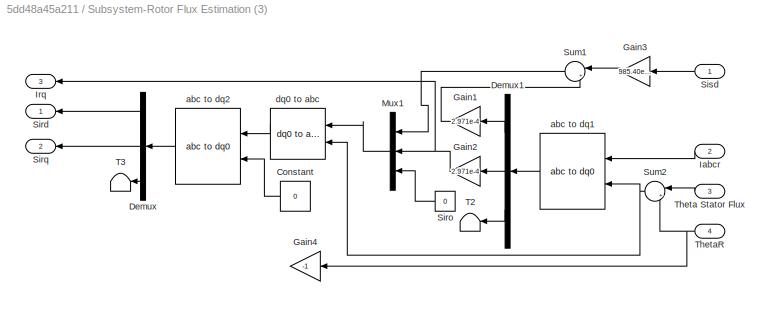
BLOCK [SubSystem] Subsystem-Rotor Flux Estimation (3)
  Ports = [4, 3]
  RequestExecContextInheritance = off
BLOCK [Constant] Subsystem-Rotor Flux Estimation (3)/Constant
  Value = 0
BLOCK [Demux] Subsystem-Rotor Flux Estimation (3)/Demux
  DisplayOption = bar
  Outputs = 3
  Ports = [1, 3]
BLOCK [Demux] Subsystem-Rotor Flux Estimation (3)/Demux1
  DisplayOption = bar
  Outputs = 3
  Ports = [1, 3]
BLOCK [Gain] Subsystem-Rotor Flux Estimation (3)/Gain1
  Gain = 2.971e-4
  OutDataTypeStr = Inherit: Inherit via internal rule
  ParamDataTypeStr = Inherit: Inherit via internal rule
  SaturateOnIntegerOverflow = off
BLOCK [Gain] Subsystem-Rotor Flux Estimation (3)/Gain2
  Gain = 2.971e-4
  OutDataTypeStr = Inherit: Inherit via internal rule
  ParamDataTypeStr = Inherit: Inherit via internal rule
  SaturateOnIntegerOverflow = off
BLOCK [Gain] Subsystem-Rotor Flux Estimation (3)/Gain3
  Gain = 985.40e-3
  OutDataTypeStr = Inherit: Inherit via internal rule
  ParamDataTypeStr = Inherit: Inherit via internal rule
  SaturateOnIntegerOverflow = off
BLOCK [Gain] Subsystem-Rotor Flux Estimation (3)/Gain4
  Gain = -1
  OutDataTypeStr = Inherit: Inherit via internal rule
  ParamDataTypeStr = Inherit: Inherit via internal rule
  SaturateOnIntegerOverflow = off
BLOCK [Inport] Subsystem-Rotor Flux Estimation (3)/Iabcr
  IconDisplay = Port number
  Port = 2
BLOCK [Outport] Subsystem-Rotor Flux Estimation (3)/Irq
  IconDisplay = Port number
  Port = 3
BLOCK [Mux] Subsystem-Rotor Flux Estimation (3)/Mux1
  DisplayOption = bar
  Inputs = 3
  Ports = [3, 1]
BLOCK [Outport] Subsystem-Rotor Flux Estimation (3)/Sird
  IconDisplay = Port number
BLOCK [Constant] Subsystem-Rotor Flux Estimation (3)/Siro
  Value = 0
BLOCK [Outport] Subsystem-Rotor Flux Estimation (3)/Sirq
  IconDisplay = Port number
  Port = 2
BLOCK [Inport] Subsystem-Rotor Flux Estimation (3)/Sisd
  IconDisplay = Port number
BLOCK [Sum] Subsystem-Rotor Flux Estimation (3)/Sum1
  IconShape = round
  InputSameDT = off
  Inputs = |++
  OutDataTypeStr = Inherit: Inherit via internal rule
  Ports = [2, 1]
  SaturateOnIntegerOverflow = off
BLOCK [Sum] Subsystem-Rotor Flux Estimation (3)/Sum2
  IconShape = round
  InputSameDT = off
  Inputs = |+-
  OutDataTypeStr = Inherit: Inherit via internal rule
  Ports = [2, 1]
  SaturateOnIntegerOverflow = off
BLOCK [Terminator] Subsystem-Rotor Flux Estimation (3)/T2
BLOCK [Terminator] Subsystem-Rotor Flux Estimation (3)/T3
BLOCK [Inport] Subsystem-Rotor Flux Estimation (3)/Theta Stator Flux
  IconDisplay = Port number
  Port = 3
BLOCK [Inport] Subsystem-Rotor Flux Estimation (3)/ThetaR
  IconDisplay = Port number
  Port = 4
BLOCK [Reference] Subsystem-Rotor Flux Estimation (3)/abc to dq1  REF=powerlib_meascontrol/Transformations/abc to dq0
  Alignment = Aligned with phase A axis
  Ports = [2, 1]
  SourceBlock = powerlib_meascontrol/Transformations/abc to dq0
  SourceType = abc to dq0 Transformation
BLOCK [Reference] Subsystem-Rotor Flux Estimation (3)/abc to dq2  REF=powerlib_meascontrol/Transformations/abc to dq0
  Alignment = Aligned with phase A axis
  Ports = [2, 1]
  SourceBlock = powerlib_meascontrol/Transformations/abc to dq0
  SourceType = abc to dq0 Transformation
BLOCK [Reference] Subsystem-Rotor Flux Estimation (3)/dq0 to abc  REF=powerlib_meascontrol/Transformations/dq0 to abc
  Alignment = Aligned with phase A axis
  Ports = [2, 1]
  SourceBlock = powerlib_meascontrol/Transformations/dq0 to abc
  SourceType = dq0 to abc Transformation
BLOCK [SubSystem] Subsystem-Rotor Flux Reference Estimator
  Ports = [4, 1]
  RequestExecContextInheritance = off
BLOCK [Gain] Subsystem-Rotor Flux Reference Estimator/-Ls//Lm
  Gain = -1.0148
  OutDataTypeStr = Inherit: Inherit via internal rule
  ParamDataTypeStr = Inherit: Inherit via internal rule
  SaturateOnIntegerOverflow = off
BLOCK [Gain] Subsystem-Rotor Flux Reference Estimator/-Ls//Lm1
  Gain = -1.0148
  OutDataTypeStr = Inherit: Inherit via internal rule
  ParamDataTypeStr = Inherit: Inherit via internal rule
  SaturateOnIntegerOverflow = off
BLOCK [Gain] Subsystem-Rotor Flux Reference Estimator/1
  Gain = 2.971e-4
  OutDataTypeStr = Inherit: Inherit via internal rule
  ParamDataTypeStr = Inherit: Inherit via internal rule
  SaturateOnIntegerOverflow = off
BLOCK [Gain] Subsystem-Rotor Flux Reference Estimator/1//Lm
  Gain = 74.0741
  OutDataTypeStr = Inherit: Inherit via internal rule
  ParamDataTypeStr = Inherit: Inherit via internal rule
  SaturateOnIntegerOverflow = off
BLOCK [Gain] Subsystem-Rotor Flux Reference Estimator/2
  Gain = 2.971e-4
  OutDataTypeStr = Inherit: Inherit via internal rule
  ParamDataTypeStr = Inherit: Inherit via internal rule
  SaturateOnIntegerOverflow = off
BLOCK [Product] Subsystem-Rotor Flux Reference Estimator/Divide
  InputSameDT = off
  Inputs = */
  OutDataTypeStr = Inherit: Inherit via internal rule
  Ports = [2, 1]
  RndMeth = Floor
  SaturateOnIntegerOverflow = off
BLOCK [Product] Subsystem-Rotor Flux Reference Estimator/Divide1
  InputSameDT = off
  Inputs = */
  OutDataTypeStr = Inherit: Inherit via internal rule
  Ports = [2, 1]
  RndMeth = Floor
  SaturateOnIntegerOverflow = off
BLOCK [Gain] Subsystem-Rotor Flux Reference Estimator/Gain
  Gain = 1.5
  OutDataTypeStr = Inherit: Inherit via internal rule
  ParamDataTypeStr = Inherit: Inherit via internal rule
  SaturateOnIntegerOverflow = off
BLOCK [Gain] Subsystem-Rotor Flux Reference Estimator/Lm//Ls
  Gain = 985.401e-3
  OutDataTypeStr = Inherit: Inherit via internal rule
  ParamDataTypeStr = Inherit: Inherit via internal rule
  SaturateOnIntegerOverflow = off
BLOCK [Math] Subsystem-Rotor Flux Reference Estimator/Math Fn
  Operator = square
  Ports = [1, 1]
BLOCK [Math] Subsystem-Rotor Flux Reference Estimator/Math Fn1
  Operator = square
  Ports = [1, 1]
BLOCK [Inport] Subsystem-Rotor Flux Reference Estimator/P*ref
  IconDisplay = Port number
BLOCK [Inport] Subsystem-Rotor Flux Reference Estimator/Q*ref
  IconDisplay = Port number
  Port = 3
BLOCK [Outport] Subsystem-Rotor Flux Reference Estimator/SiR*ref
  IconDisplay = Port number
BLOCK [Inport] Subsystem-Rotor Flux Reference Estimator/Sis
  IconDisplay = Port number
  Port = 4
BLOCK [Sqrt] Subsystem-Rotor Flux Reference Estimator/Sqrt
BLOCK [Sum] Subsystem-Rotor Flux Reference Estimator/Sum1
  IconShape = round
  InputSameDT = off
  Inputs = |++
  OutDataTypeStr = Inherit: Inherit via internal rule
  Ports = [2, 1]
  SaturateOnIntegerOverflow = off
BLOCK [Sum] Subsystem-Rotor Flux Reference Estimator/Sum2
  IconShape = round
  InputSameDT = off
  Inputs = |++
  OutDataTypeStr = Inherit: Inherit via internal rule
  Ports = [2, 1]
  SaturateOnIntegerOverflow = off
BLOCK [Sum] Subsystem-Rotor Flux Reference Estimator/Sum3
  IconShape = round
  InputSameDT = off
  Inputs = |++
  OutDataTypeStr = Inherit: Inherit via internal rule
  Ports = [2, 1]
  SaturateOnIntegerOverflow = off
BLOCK [Inport] Subsystem-Rotor Flux Reference Estimator/Vs*
  IconDisplay = Port number
  Port = 2
BLOCK [SubSystem] Subsystem-Stator Flux Estimator (1)
  Ports = [4, 2]
  RequestExecContextInheritance = off
BLOCK [Demux] Subsystem-Stator Flux Estimator (1)/Demux
  DisplayOption = bar
  Outputs = 3
  Ports = [1, 3]
BLOCK [Demux] Subsystem-Stator Flux Estimator (1)/Demux1
  DisplayOption = bar
  Outputs = 3
  Ports = [1, 3]
BLOCK [Inport] Subsystem-Stator Flux Estimator (1)/Iabcs
  IconDisplay = Port number
  Port = 3
BLOCK [Integrator] Subsystem-Stator Flux Estimator (1)/Integrator
  Ports = [1, 1]
BLOCK [Integrator] Subsystem-Stator Flux Estimator (1)/Integrator1
  Ports = [1, 1]
BLOCK [Gain] Subsystem-Stator Flux Estimator (1)/Rs
  Gain = 0.012
  OutDataTypeStr = Inherit: Inherit via internal rule
  ParamDataTypeStr = Inherit: Inherit via internal rule
  SaturateOnIntegerOverflow = off
BLOCK [Gain] Subsystem-Stator Flux Estimator (1)/Rs1
  Gain = 0.012
  OutDataTypeStr = Inherit: Inherit via internal rule
  ParamDataTypeStr = Inherit: Inherit via internal rule
  SaturateOnIntegerOverflow = off
BLOCK [Outport] Subsystem-Stator Flux Estimator (1)/Sisd
  IconDisplay = Port number
BLOCK [Outport] Subsystem-Stator Flux Estimator (1)/Sisq
  IconDisplay = Port number
  Port = 2
BLOCK [Sum] Subsystem-Stator Flux Estimator (1)/Sum1
  IconShape = round
  InputSameDT = off
  Inputs = |+-
  OutDataTypeStr = Inherit: Inherit via internal rule
  Ports = [2, 1]
  SaturateOnIntegerOverflow = off
BLOCK [Sum] Subsystem-Stator Flux Estimator (1)/Sum2
  IconShape = round
  InputSameDT = off
  Inputs = |+-
  OutDataTypeStr = Inherit: Inherit via internal rule
  Ports = [2, 1]
  SaturateOnIntegerOverflow = off
BLOCK [Terminator] Subsystem-Stator Flux Estimator (1)/T1
BLOCK [Terminator] Subsystem-Stator Flux Estimator (1)/T2
BLOCK [Inport] Subsystem-Stator Flux Estimator (1)/ThetaI
  IconDisplay = Port number
  Port = 4
BLOCK [Inport] Subsystem-Stator Flux Estimator (1)/ThetaV
  IconDisplay = Port number
  Port = 2
BLOCK [Inport] Subsystem-Stator Flux Estimator (1)/Vabcs
  IconDisplay = Port number
BLOCK [Reference] Subsystem-Stator Flux Estimator (1)/abc to dq0  REF=powerlib_meascontrol/Transformations/abc to dq0
  Alignment = Aligned with phase A axis
  Ports = [2, 1]
  SourceBlock = powerlib_meascontrol/Transformations/abc to dq0
  SourceType = abc to dq0 Transformation
BLOCK [Reference] Subsystem-Stator Flux Estimator (1)/abc to dq1  REF=powerlib_meascontrol/Transformations/abc to dq0
  Alignment = Aligned with phase A axis
  Ports = [2, 1]
  SourceBlock = powerlib_meascontrol/Transformations/abc to dq0
  SourceType = abc to dq0 Transformation
BLOCK [SubSystem] Three-Level Hystereis Band
  ErrorFcn = Stateflow.Translate.translate
  PermitHierarchicalResolution = ExplicitOnly
  Ports = [3, 2]
  RequestExecContextInheritance = off
  SFBlockType = MATLAB Function
  TreatAsAtomicUnit = on
BLOCK [Demux] Three-Level Hystereis Band/ Demux 
  Outputs = 1
  Ports = [1, 1]
BLOCK [S-Function] Three-Level Hystereis Band/ SFunction 
  EnableBusSupport = on
  FunctionName = sf_sfun
  PortCounts = [3 3]
  Ports = [3, 3]
  Tag = Stateflow S-Function dfig_dtc_ann 4
BLOCK [Terminator] Three-Level Hystereis Band/ Terminator 
BLOCK [Outport] Three-Level Hystereis Band/Ht
  IconDisplay = Port number
BLOCK [Inport] Three-Level Hystereis Band/Torque
  IconDisplay = Port number
  Port = 2
BLOCK [Inport] Three-Level Hystereis Band/TorqueRef
  IconDisplay = Port number
BLOCK [Inport] Three-Level Hystereis Band/m
  IconDisplay = Port number
  Port = 3
BLOCK [Outport] Three-Level Hystereis Band/mm
  IconDisplay = Port number
  Port = 2
BLOCK [Constant] Tmech
  Value = -8000
BLOCK [Step] Tmech1
  After = -8000
  SampleTime = 0
  Time = 0.5
BLOCK [Constant] Tmech2
  Value = 8000
BLOCK [Step] Tmech3
  After = 8000
  SampleTime = 0
  Time = 0.5
BLOCK [SubSystem] Two-Level Hystereis Band
  ErrorFcn = Stateflow.Translate.translate
  PermitHierarchicalResolution = ExplicitOnly
  Ports = [3, 2]
  RequestExecContextInheritance = off
  SFBlockType = MATLAB Function
  TreatAsAtomicUnit = on
BLOCK [Demux] Two-Level Hystereis Band/ Demux 
  Outputs = 1
  Ports = [1, 1]
BLOCK [S-Function] Two-Level Hystereis Band/ SFunction 
  EnableBusSupport = on
  FunctionName = sf_sfun
  PortCounts = [3 3]
  Ports = [3, 3]
  Tag = Stateflow S-Function dfig_dtc_ann 1
BLOCK [Terminator] Two-Level Hystereis Band/ Terminator 
BLOCK [Inport] Two-Level Hystereis Band/Flux
  IconDisplay = Port number
  Port = 2
BLOCK [Inport] Two-Level Hystereis Band/FluxRef
  IconDisplay = Port number
BLOCK [Outport] Two-Level Hystereis Band/Hf
  IconDisplay = Port number
BLOCK [Inport] Two-Level Hystereis Band/m
  IconDisplay = Port number
  Port = 3
BLOCK [Outport] Two-Level Hystereis Band/mm
  IconDisplay = Port number
  Port = 2
BLOCK [Constant] Vs*
  Value = 562.86
BLOCK [Constant] Wr*
  Value = 40*pi
BLOCK [Step] Wr*1
  After = 40*pi
  SampleTime = 0
  Time = 0.5
BLOCK [Constant] Wr*2
  Value = 8000
BLOCK [Reference] powergui  REF=powerlib/powergui
  DisableRonSwitches = off
  DisableSnubberDevices = off
  DisableVfSwitches = off
  DisplayEquations = off
  DisplayStyle = 1
  EnableUseOfTLC = off
  ErrMax = 1e-4
  Frange = [0:2:500]
  FreqAxis = off
  FunctionMessages = off
  HookPort = off
  Interpol = off
  Iterations = 50
  MaxFrequency = 1000
  Pbase = 100e6
  Ports = []
  Priority = 1
  ResistiveCurrentMeasurement = off
  RestoreLinks = warning
  RmsSteady = 1
  SPID = off
  SampleTime = 50e-6
  ShowGrid = off
  SolverType = Tustin
  SourceBlock = powerlib/powergui
  SourceType = PSB option menu block
  StartTime = 0.0
  SwTol = 0
  Ts = 0
  UnitsV = kV
  UnitsW = MW
  UserDataPersistent = on
  Xlog = on
  Ylog = off
  ZoomFFT = off
  cycles = 1
  display = off
  echomessages = off
  frequency = 60
  frequencyindice = 50
  frequencyindicesteady = 1
  fundamental = 60
  methode = off
  save = off
  structure = 0
  variable = ZData
  x0status = blocks
ANNOTATION Subsystem-Rotor Flux Reference Estimator: Idr
ANNOTATION Subsystem-Rotor Flux Reference Estimator: Ids
ANNOTATION Subsystem-Rotor Flux Reference Estimator: Iqr
ANNOTATION Subsystem-Rotor Flux Reference Estimator: Iqs
ANNOTATION Subsystem-Rotor Flux Reference Estimator: Sird
ANNOTATION Subsystem-Rotor Flux Reference Estimator: Sirq
NET Bus Selector:1 -> Goto17:1, Scope:1
LINE Bus Selector:10 -> Scope8:5
LINE Bus Selector:11 -> Scope11:1
LINE Bus Selector:12 -> Scope11:2
LINE Bus Selector:13 -> Scope11:3
LINE Bus Selector:2 -> Scope:2
LINE Bus Selector:3 -> Scope:3
LINE Bus Selector:4 -> Scope:4
LINE Bus Selector:5 -> Goto8:1
LINE Bus Selector:6 -> Scope8:1
LINE Bus Selector:7 -> Scope8:2
LINE Bus Selector:8 -> Scope8:3
LINE Bus Selector:9 -> Scope8:4
LINE Constant Stator Flux1:1 -> Rotor Flux Torque Estimator (4):4
LINE Constant Stator Flux:1 -> Subsystem-Rotor Flux Estimation (3):1
LINE Constant1:1 -> Subsystem-Stator Flux Estimator (1):2
LINE Constant2:1 -> Subsystem-Stator Flux Estimator (1):4
LINE DFIG:1 -> Bus Selector:1
NET Data Type Conversion1:1 -> Logical Operator1:1, Mux3:3, Scope3:2
NET Data Type Conversion2:1 -> Logical Operator2:1, Mux3:5, Scope3:3
NET Data Type Conversion:1 -> Logical Operator:1, Mux3:1, Scope3:1
NET Demux1:1 -> Neural Net Corrector:1, Scope9:1
NET Demux1:2 -> Neural Net Corrector:2, Scope9:2
NET Demux1:3 -> Neural Net Corrector:3, Scope9:3
LINE Demux:1 -> Scope4:1
LINE Demux:2 -> Scope4:2
LINE Demux:3 -> Scope4:3
LINE From10:1 -> Rotor Flux Torque Estimator (4):3
LINE From12:1 -> Subsystem-Reference Torque Estimator:3
LINE From13:1 -> Two-Level Hystereis Band:1
NET From14:1 -> Scope6:1, Two-Level Hystereis Band:2
LINE From15:1 -> Three-Level Hystereis Band:1
NET From16:1 -> Scope7:1, Three-Level Hystereis Band:2
LINE From17:1 -> Rotor Flux Sector:1
LINE From18:1 -> Rotor Flux Sector:2
LINE From19:1 -> Mux1:1
LINE From1:1 -> Subsystem-Stator Flux Estimator (1):3
LINE From20:1 -> Mux1:2
LINE From21:1 -> Mux1:3
LINE From22:1 -> Rotor Side Inverter:1
LINE From23:1 -> Demux:1
LINE From24:1 -> Mux1:4
LINE From2:1 -> Stator Flux Estimator (2):1
LINE From3:1 -> Stator Flux Estimator (2):2
LINE From4:1 -> Subsystem-Rotor Flux Estimation (3):3
LINE From5:1 -> Subsystem-Rotor Flux Estimation (3):2
LINE From7:1 -> Subsystem-Rotor Flux Estimation (3):4
LINE From8:1 -> Rotor Flux Torque Estimator (4):1
LINE From9:1 -> Rotor Flux Torque Estimator (4):2
LINE From:1 -> Subsystem-Stator Flux Estimator (1):1
LINE Logical Operator1:1 -> Mux3:4
LINE Logical Operator2:1 -> Mux3:6
LINE Logical Operator:1 -> Mux3:2
LINE Memory1:1 -> Three-Level Hystereis Band:3
LINE Memory2:1 -> Data Type Conversion:1
LINE Memory3:1 -> Data Type Conversion1:1
LINE Memory4:1 -> Data Type Conversion2:1
LINE Memory:1 -> Two-Level Hystereis Band:3
LINE Mux1:1 -> Pattern Recognition Neural Network:1
LINE Mux3:1 -> Goto21:1
NET Neural Net Corrector:1 -> Memory2:1, Scope10:1
NET Neural Net Corrector:2 -> Memory3:1, Scope10:2
NET Neural Net Corrector:3 -> Memory4:1, Scope10:3
LINE P*ref:1 -> Subsystem-Rotor Flux Reference Estimator:1
LINE Pattern Recognition Neural Network/ a{1} :1 -> Pattern Recognition Neural Network/Layer 2:1
LINE Pattern Recognition Neural Network/Input:1 -> Pattern Recognition Neural Network/Process Input 1:1
LINE Pattern Recognition Neural Network/Layer 1/Delays 1/mux:1 -> Pattern Recognition Neural Network/Layer 1/Delays 1/pd{1,1}:1
LINE Pattern Recognition Neural Network/Layer 1/Delays 1/p{1}:1 -> Pattern Recognition Neural Network/Layer 1/Delays 1/mux:1
LINE Pattern Recognition Neural Network/Layer 1/Delays 1:1 -> Pattern Recognition Neural Network/Layer 1/IW{1,1}:1
LINE Pattern Recognition Neural Network/Layer 1/IW{1,1}/IW{1,1}(1,:)':1 -> Pattern Recognition Neural Network/Layer 1/IW{1,1}/dotprod1:1
LINE Pattern Recognition Neural Network/Layer 1/IW{1,1}/IW{1,1}(10,:)':1 -> Pattern Recognition Neural Network/Layer 1/IW{1,1}/dotprod10:1
LINE Pattern Recognition Neural Network/Layer 1/IW{1,1}/IW{1,1}(100,:)':1 -> Pattern Recognition Neural Network/Layer 1/IW{1,1}/dotprod100:1
LINE Pattern Recognition Neural Network/Layer 1/IW{1,1}/IW{1,1}(11,:)':1 -> Pattern Recognition Neural Network/Layer 1/IW{1,1}/dotprod11:1
LINE Pattern Recognition Neural Network/Layer 1/IW{1,1}/IW{1,1}(12,:)':1 -> Pattern Recognition Neural Network/Layer 1/IW{1,1}/dotprod12:1
LINE Pattern Recognition Neural Network/Layer 1/IW{1,1}/IW{1,1}(13,:)':1 -> Pattern Recognition Neural Network/Layer 1/IW{1,1}/dotprod13:1
LINE Pattern Recognition Neural Network/Layer 1/IW{1,1}/IW{1,1}(14,:)':1 -> Pattern Recognition Neural Network/Layer 1/IW{1,1}/dotprod14:1
LINE Pattern Recognition Neural Network/Layer 1/IW{1,1}/IW{1,1}(15,:)':1 -> Pattern Recognition Neural Network/Layer 1/IW{1,1}/dotprod15:1
LINE Pattern Recognition Neural Network/Layer 1/IW{1,1}/IW{1,1}(16,:)':1 -> Pattern Recognition Neural Network/Layer 1/IW{1,1}/dotprod16:1
LINE Pattern Recognition Neural Network/Layer 1/IW{1,1}/IW{1,1}(17,:)':1 -> Pattern Recognition Neural Network/Layer 1/IW{1,1}/dotprod17:1
LINE Pattern Recognition Neural Network/Layer 1/IW{1,1}/IW{1,1}(18,:)':1 -> Pattern Recognition Neural Network/Layer 1/IW{1,1}/dotprod18:1
LINE Pattern Recognition Neural Network/Layer 1/IW{1,1}/IW{1,1}(19,:)':1 -> Pattern Recognition Neural Network/Layer 1/IW{1,1}/dotprod19:1
LINE Pattern Recognition Neural Network/Layer 1/IW{1,1}/IW{1,1}(2,:)':1 -> Pattern Recognition Neural Network/Layer 1/IW{1,1}/dotprod2:1
LINE Pattern Recognition Neural Network/Layer 1/IW{1,1}/IW{1,1}(20,:)':1 -> Pattern Recognition Neural Network/Layer 1/IW{1,1}/dotprod20:1
LINE Pattern Recognition Neural Network/Layer 1/IW{1,1}/IW{1,1}(21,:)':1 -> Pattern Recognition Neural Network/Layer 1/IW{1,1}/dotprod21:1
LINE Pattern Recognition Neural Network/Layer 1/IW{1,1}/IW{1,1}(22,:)':1 -> Pattern Recognition Neural Network/Layer 1/IW{1,1}/dotprod22:1
LINE Pattern Recognition Neural Network/Layer 1/IW{1,1}/IW{1,1}(23,:)':1 -> Pattern Recognition Neural Network/Layer 1/IW{1,1}/dotprod23:1
LINE Pattern Recognition Neural Network/Layer 1/IW{1,1}/IW{1,1}(24,:)':1 -> Pattern Recognition Neural Network/Layer 1/IW{1,1}/dotprod24:1
LINE Pattern Recognition Neural Network/Layer 1/IW{1,1}/IW{1,1}(25,:)':1 -> Pattern Recognition Neural Network/Layer 1/IW{1,1}/dotprod25:1
LINE Pattern Recognition Neural Network/Layer 1/IW{1,1}/IW{1,1}(26,:)':1 -> Pattern Recognition Neural Network/Layer 1/IW{1,1}/dotprod26:1
LINE Pattern Recognition Neural Network/Layer 1/IW{1,1}/IW{1,1}(27,:)':1 -> Pattern Recognition Neural Network/Layer 1/IW{1,1}/dotprod27:1
LINE Pattern Recognition Neural Network/Layer 1/IW{1,1}/IW{1,1}(28,:)':1 -> Pattern Recognition Neural Network/Layer 1/IW{1,1}/dotprod28:1
LINE Pattern Recognition Neural Network/Layer 1/IW{1,1}/IW{1,1}(29,:)':1 -> Pattern Recognition Neural Network/Layer 1/IW{1,1}/dotprod29:1
LINE Pattern Recognition Neural Network/Layer 1/IW{1,1}/IW{1,1}(3,:)':1 -> Pattern Recognition Neural Network/Layer 1/IW{1,1}/dotprod3:1
LINE Pattern Recognition Neural Network/Layer 1/IW{1,1}/IW{1,1}(30,:)':1 -> Pattern Recognition Neural Network/Layer 1/IW{1,1}/dotprod30:1
LINE Pattern Recognition Neural Network/Layer 1/IW{1,1}/IW{1,1}(31,:)':1 -> Pattern Recognition Neural Network/Layer 1/IW{1,1}/dotprod31:1
LINE Pattern Recognition Neural Network/Layer 1/IW{1,1}/IW{1,1}(32,:)':1 -> Pattern Recognition Neural Network/Layer 1/IW{1,1}/dotprod32:1
LINE Pattern Recognition Neural Network/Layer 1/IW{1,1}/IW{1,1}(33,:)':1 -> Pattern Recognition Neural Network/Layer 1/IW{1,1}/dotprod33:1
LINE Pattern Recognition Neural Network/Layer 1/IW{1,1}/IW{1,1}(34,:)':1 -> Pattern Recognition Neural Network/Layer 1/IW{1,1}/dotprod34:1
LINE Pattern Recognition Neural Network/Layer 1/IW{1,1}/IW{1,1}(35,:)':1 -> Pattern Recognition Neural Network/Layer 1/IW{1,1}/dotprod35:1
LINE Pattern Recognition Neural Network/Layer 1/IW{1,1}/IW{1,1}(36,:)':1 -> Pattern Recognition Neural Network/Layer 1/IW{1,1}/dotprod36:1
LINE Pattern Recognition Neural Network/Layer 1/IW{1,1}/IW{1,1}(37,:)':1 -> Pattern Recognition Neural Network/Layer 1/IW{1,1}/dotprod37:1
LINE Pattern Recognition Neural Network/Layer 1/IW{1,1}/IW{1,1}(38,:)':1 -> Pattern Recognition Neural Network/Layer 1/IW{1,1}/dotprod38:1
LINE Pattern Recognition Neural Network/Layer 1/IW{1,1}/IW{1,1}(39,:)':1 -> Pattern Recognition Neural Network/Layer 1/IW{1,1}/dotprod39:1
LINE Pattern Recognition Neural Network/Layer 1/IW{1,1}/IW{1,1}(4,:)':1 -> Pattern Recognition Neural Network/Layer 1/IW{1,1}/dotprod4:1
LINE Pattern Recognition Neural Network/Layer 1/IW{1,1}/IW{1,1}(40,:)':1 -> Pattern Recognition Neural Network/Layer 1/IW{1,1}/dotprod40:1
LINE Pattern Recognition Neural Network/Layer 1/IW{1,1}/IW{1,1}(41,:)':1 -> Pattern Recognition Neural Network/Layer 1/IW{1,1}/dotprod41:1
LINE Pattern Recognition Neural Network/Layer 1/IW{1,1}/IW{1,1}(42,:)':1 -> Pattern Recognition Neural Network/Layer 1/IW{1,1}/dotprod42:1
LINE Pattern Recognition Neural Network/Layer 1/IW{1,1}/IW{1,1}(43,:)':1 -> Pattern Recognition Neural Network/Layer 1/IW{1,1}/dotprod43:1
LINE Pattern Recognition Neural Network/Layer 1/IW{1,1}/IW{1,1}(44,:)':1 -> Pattern Recognition Neural Network/Layer 1/IW{1,1}/dotprod44:1
LINE Pattern Recognition Neural Network/Layer 1/IW{1,1}/IW{1,1}(45,:)':1 -> Pattern Recognition Neural Network/Layer 1/IW{1,1}/dotprod45:1
LINE Pattern Recognition Neural Network/Layer 1/IW{1,1}/IW{1,1}(46,:)':1 -> Pattern Recognition Neural Network/Layer 1/IW{1,1}/dotprod46:1
LINE Pattern Recognition Neural Network/Layer 1/IW{1,1}/IW{1,1}(47,:)':1 -> Pattern Recognition Neural Network/Layer 1/IW{1,1}/dotprod47:1
LINE Pattern Recognition Neural Network/Layer 1/IW{1,1}/IW{1,1}(48,:)':1 -> Pattern Recognition Neural Network/Layer 1/IW{1,1}/dotprod48:1
LINE Pattern Recognition Neural Network/Layer 1/IW{1,1}/IW{1,1}(49,:)':1 -> Pattern Recognition Neural Network/Layer 1/IW{1,1}/dotprod49:1
LINE Pattern Recognition Neural Network/Layer 1/IW{1,1}/IW{1,1}(5,:)':1 -> Pattern Recognition Neural Network/Layer 1/IW{1,1}/dotprod5:1
LINE Pattern Recognition Neural Network/Layer 1/IW{1,1}/IW{1,1}(50,:)':1 -> Pattern Recognition Neural Network/Layer 1/IW{1,1}/dotprod50:1
LINE Pattern Recognition Neural Network/Layer 1/IW{1,1}/IW{1,1}(51,:)':1 -> Pattern Recognition Neural Network/Layer 1/IW{1,1}/dotprod51:1
LINE Pattern Recognition Neural Network/Layer 1/IW{1,1}/IW{1,1}(52,:)':1 -> Pattern Recognition Neural Network/Layer 1/IW{1,1}/dotprod52:1
LINE Pattern Recognition Neural Network/Layer 1/IW{1,1}/IW{1,1}(53,:)':1 -> Pattern Recognition Neural Network/Layer 1/IW{1,1}/dotprod53:1
LINE Pattern Recognition Neural Network/Layer 1/IW{1,1}/IW{1,1}(54,:)':1 -> Pattern Recognition Neural Network/Layer 1/IW{1,1}/dotprod54:1
LINE Pattern Recognition Neural Network/Layer 1/IW{1,1}/IW{1,1}(55,:)':1 -> Pattern Recognition Neural Network/Layer 1/IW{1,1}/dotprod55:1
LINE Pattern Recognition Neural Network/Layer 1/IW{1,1}/IW{1,1}(56,:)':1 -> Pattern Recognition Neural Network/Layer 1/IW{1,1}/dotprod56:1
LINE Pattern Recognition Neural Network/Layer 1/IW{1,1}/IW{1,1}(57,:)':1 -> Pattern Recognition Neural Network/Layer 1/IW{1,1}/dotprod57:1
LINE Pattern Recognition Neural Network/Layer 1/IW{1,1}/IW{1,1}(58,:)':1 -> Pattern Recognition Neural Network/Layer 1/IW{1,1}/dotprod58:1
LINE Pattern Recognition Neural Network/Layer 1/IW{1,1}/IW{1,1}(59,:)':1 -> Pattern Recognition Neural Network/Layer 1/IW{1,1}/dotprod59:1
LINE Pattern Recognition Neural Network/Layer 1/IW{1,1}/IW{1,1}(6,:)':1 -> Pattern Recognition Neural Network/Layer 1/IW{1,1}/dotprod6:1
LINE Pattern Recognition Neural Network/Layer 1/IW{1,1}/IW{1,1}(60,:)':1 -> Pattern Recognition Neural Network/Layer 1/IW{1,1}/dotprod60:1
LINE Pattern Recognition Neural Network/Layer 1/IW{1,1}/IW{1,1}(61,:)':1 -> Pattern Recognition Neural Network/Layer 1/IW{1,1}/dotprod61:1
LINE Pattern Recognition Neural Network/Layer 1/IW{1,1}/IW{1,1}(62,:)':1 -> Pattern Recognition Neural Network/Layer 1/IW{1,1}/dotprod62:1
LINE Pattern Recognition Neural Network/Layer 1/IW{1,1}/IW{1,1}(63,:)':1 -> Pattern Recognition Neural Network/Layer 1/IW{1,1}/dotprod63:1
LINE Pattern Recognition Neural Network/Layer 1/IW{1,1}/IW{1,1}(64,:)':1 -> Pattern Recognition Neural Network/Layer 1/IW{1,1}/dotprod64:1
LINE Pattern Recognition Neural Network/Layer 1/IW{1,1}/IW{1,1}(65,:)':1 -> Pattern Recognition Neural Network/Layer 1/IW{1,1}/dotprod65:1
LINE Pattern Recognition Neural Network/Layer 1/IW{1,1}/IW{1,1}(66,:)':1 -> Pattern Recognition Neural Network/Layer 1/IW{1,1}/dotprod66:1
LINE Pattern Recognition Neural Network/Layer 1/IW{1,1}/IW{1,1}(67,:)':1 -> Pattern Recognition Neural Network/Layer 1/IW{1,1}/dotprod67:1
LINE Pattern Recognition Neural Network/Layer 1/IW{1,1}/IW{1,1}(68,:)':1 -> Pattern Recognition Neural Network/Layer 1/IW{1,1}/dotprod68:1
LINE Pattern Recognition Neural Network/Layer 1/IW{1,1}/IW{1,1}(69,:)':1 -> Pattern Recognition Neural Network/Layer 1/IW{1,1}/dotprod69:1
LINE Pattern Recognition Neural Network/Layer 1/IW{1,1}/IW{1,1}(7,:)':1 -> Pattern Recognition Neural Network/Layer 1/IW{1,1}/dotprod7:1
LINE Pattern Recognition Neural Network/Layer 1/IW{1,1}/IW{1,1}(70,:)':1 -> Pattern Recognition Neural Network/Layer 1/IW{1,1}/dotprod70:1
LINE Pattern Recognition Neural Network/Layer 1/IW{1,1}/IW{1,1}(71,:)':1 -> Pattern Recognition Neural Network/Layer 1/IW{1,1}/dotprod71:1
LINE Pattern Recognition Neural Network/Layer 1/IW{1,1}/IW{1,1}(72,:)':1 -> Pattern Recognition Neural Network/Layer 1/IW{1,1}/dotprod72:1
LINE Pattern Recognition Neural Network/Layer 1/IW{1,1}/IW{1,1}(73,:)':1 -> Pattern Recognition Neural Network/Layer 1/IW{1,1}/dotprod73:1
LINE Pattern Recognition Neural Network/Layer 1/IW{1,1}/IW{1,1}(74,:)':1 -> Pattern Recognition Neural Network/Layer 1/IW{1,1}/dotprod74:1
LINE Pattern Recognition Neural Network/Layer 1/IW{1,1}/IW{1,1}(75,:)':1 -> Pattern Recognition Neural Network/Layer 1/IW{1,1}/dotprod75:1
LINE Pattern Recognition Neural Network/Layer 1/IW{1,1}/IW{1,1}(76,:)':1 -> Pattern Recognition Neural Network/Layer 1/IW{1,1}/dotprod76:1
LINE Pattern Recognition Neural Network/Layer 1/IW{1,1}/IW{1,1}(77,:)':1 -> Pattern Recognition Neural Network/Layer 1/IW{1,1}/dotprod77:1
LINE Pattern Recognition Neural Network/Layer 1/IW{1,1}/IW{1,1}(78,:)':1 -> Pattern Recognition Neural Network/Layer 1/IW{1,1}/dotprod78:1
LINE Pattern Recognition Neural Network/Layer 1/IW{1,1}/IW{1,1}(79,:)':1 -> Pattern Recognition Neural Network/Layer 1/IW{1,1}/dotprod79:1
LINE Pattern Recognition Neural Network/Layer 1/IW{1,1}/IW{1,1}(8,:)':1 -> Pattern Recognition Neural Network/Layer 1/IW{1,1}/dotprod8:1
LINE Pattern Recognition Neural Network/Layer 1/IW{1,1}/IW{1,1}(80,:)':1 -> Pattern Recognition Neural Network/Layer 1/IW{1,1}/dotprod80:1
LINE Pattern Recognition Neural Network/Layer 1/IW{1,1}/IW{1,1}(81,:)':1 -> Pattern Recognition Neural Network/Layer 1/IW{1,1}/dotprod81:1
LINE Pattern Recognition Neural Network/Layer 1/IW{1,1}/IW{1,1}(82,:)':1 -> Pattern Recognition Neural Network/Layer 1/IW{1,1}/dotprod82:1
LINE Pattern Recognition Neural Network/Layer 1/IW{1,1}/IW{1,1}(83,:)':1 -> Pattern Recognition Neural Network/Layer 1/IW{1,1}/dotprod83:1
LINE Pattern Recognition Neural Network/Layer 1/IW{1,1}/IW{1,1}(84,:)':1 -> Pattern Recognition Neural Network/Layer 1/IW{1,1}/dotprod84:1
LINE Pattern Recognition Neural Network/Layer 1/IW{1,1}/IW{1,1}(85,:)':1 -> Pattern Recognition Neural Network/Layer 1/IW{1,1}/dotprod85:1
LINE Pattern Recognition Neural Network/Layer 1/IW{1,1}/IW{1,1}(86,:)':1 -> Pattern Recognition Neural Network/Layer 1/IW{1,1}/dotprod86:1
LINE Pattern Recognition Neural Network/Layer 1/IW{1,1}/IW{1,1}(87,:)':1 -> Pattern Recognition Neural Network/Layer 1/IW{1,1}/dotprod87:1
LINE Pattern Recognition Neural Network/Layer 1/IW{1,1}/IW{1,1}(88,:)':1 -> Pattern Recognition Neural Network/Layer 1/IW{1,1}/dotprod88:1
LINE Pattern Recognition Neural Network/Layer 1/IW{1,1}/IW{1,1}(89,:)':1 -> Pattern Recognition Neural Network/Layer 1/IW{1,1}/dotprod89:1
LINE Pattern Recognition Neural Network/Layer 1/IW{1,1}/IW{1,1}(9,:)':1 -> Pattern Recognition Neural Network/Layer 1/IW{1,1}/dotprod9:1
LINE Pattern Recognition Neural Network/Layer 1/IW{1,1}/IW{1,1}(90,:)':1 -> Pattern Recognition Neural Network/Layer 1/IW{1,1}/dotprod90:1
LINE Pattern Recognition Neural Network/Layer 1/IW{1,1}/IW{1,1}(91,:)':1 -> Pattern Recognition Neural Network/Layer 1/IW{1,1}/dotprod91:1
LINE Pattern Recognition Neural Network/Layer 1/IW{1,1}/IW{1,1}(92,:)':1 -> Pattern Recognition Neural Network/Layer 1/IW{1,1}/dotprod92:1
LINE Pattern Recognition Neural Network/Layer 1/IW{1,1}/IW{1,1}(93,:)':1 -> Pattern Recognition Neural Network/Layer 1/IW{1,1}/dotprod93:1
LINE Pattern Recognition Neural Network/Layer 1/IW{1,1}/IW{1,1}(94,:)':1 -> Pattern Recognition Neural Network/Layer 1/IW{1,1}/dotprod94:1
LINE Pattern Recognition Neural Network/Layer 1/IW{1,1}/IW{1,1}(95,:)':1 -> Pattern Recognition Neural Network/Layer 1/IW{1,1}/dotprod95:1
LINE Pattern Recognition Neural Network/Layer 1/IW{1,1}/IW{1,1}(96,:)':1 -> Pattern Recognition Neural Network/Layer 1/IW{1,1}/dotprod96:1
LINE Pattern Recognition Neural Network/Layer 1/IW{1,1}/IW{1,1}(97,:)':1 -> Pattern Recognition Neural Network/Layer 1/IW{1,1}/dotprod97:1
LINE Pattern Recognition Neural Network/Layer 1/IW{1,1}/IW{1,1}(98,:)':1 -> Pattern Recognition Neural Network/Layer 1/IW{1,1}/dotprod98:1
LINE Pattern Recognition Neural Network/Layer 1/IW{1,1}/IW{1,1}(99,:)':1 -> Pattern Recognition Neural Network/Layer 1/IW{1,1}/dotprod99:1
LINE Pattern Recognition Neural Network/Layer 1/IW{1,1}/Mux:1 -> Pattern Recognition Neural Network/Layer 1/IW{1,1}/iz{1,1}:1
LINE Pattern Recognition Neural Network/Layer 1/IW{1,1}/dotprod100:1 -> Pattern Recognition Neural Network/Layer 1/IW{1,1}/Mux:100
LINE Pattern Recognition Neural Network/Layer 1/IW{1,1}/dotprod10:1 -> Pattern Recognition Neural Network/Layer 1/IW{1,1}/Mux:10
LINE Pattern Recognition Neural Network/Layer 1/IW{1,1}/dotprod11:1 -> Pattern Recognition Neural Network/Layer 1/IW{1,1}/Mux:11
LINE Pattern Recognition Neural Network/Layer 1/IW{1,1}/dotprod12:1 -> Pattern Recognition Neural Network/Layer 1/IW{1,1}/Mux:12
LINE Pattern Recognition Neural Network/Layer 1/IW{1,1}/dotprod13:1 -> Pattern Recognition Neural Network/Layer 1/IW{1,1}/Mux:13
LINE Pattern Recognition Neural Network/Layer 1/IW{1,1}/dotprod14:1 -> Pattern Recognition Neural Network/Layer 1/IW{1,1}/Mux:14
LINE Pattern Recognition Neural Network/Layer 1/IW{1,1}/dotprod15:1 -> Pattern Recognition Neural Network/Layer 1/IW{1,1}/Mux:15
LINE Pattern Recognition Neural Network/Layer 1/IW{1,1}/dotprod16:1 -> Pattern Recognition Neural Network/Layer 1/IW{1,1}/Mux:16
LINE Pattern Recognition Neural Network/Layer 1/IW{1,1}/dotprod17:1 -> Pattern Recognition Neural Network/Layer 1/IW{1,1}/Mux:17
LINE Pattern Recognition Neural Network/Layer 1/IW{1,1}/dotprod18:1 -> Pattern Recognition Neural Network/Layer 1/IW{1,1}/Mux:18
LINE Pattern Recognition Neural Network/Layer 1/IW{1,1}/dotprod19:1 -> Pattern Recognition Neural Network/Layer 1/IW{1,1}/Mux:19
LINE Pattern Recognition Neural Network/Layer 1/IW{1,1}/dotprod1:1 -> Pattern Recognition Neural Network/Layer 1/IW{1,1}/Mux:1
LINE Pattern Recognition Neural Network/Layer 1/IW{1,1}/dotprod20:1 -> Pattern Recognition Neural Network/Layer 1/IW{1,1}/Mux:20
LINE Pattern Recognition Neural Network/Layer 1/IW{1,1}/dotprod21:1 -> Pattern Recognition Neural Network/Layer 1/IW{1,1}/Mux:21
LINE Pattern Recognition Neural Network/Layer 1/IW{1,1}/dotprod22:1 -> Pattern Recognition Neural Network/Layer 1/IW{1,1}/Mux:22
LINE Pattern Recognition Neural Network/Layer 1/IW{1,1}/dotprod23:1 -> Pattern Recognition Neural Network/Layer 1/IW{1,1}/Mux:23
LINE Pattern Recognition Neural Network/Layer 1/IW{1,1}/dotprod24:1 -> Pattern Recognition Neural Network/Layer 1/IW{1,1}/Mux:24
LINE Pattern Recognition Neural Network/Layer 1/IW{1,1}/dotprod25:1 -> Pattern Recognition Neural Network/Layer 1/IW{1,1}/Mux:25
LINE Pattern Recognition Neural Network/Layer 1/IW{1,1}/dotprod26:1 -> Pattern Recognition Neural Network/Layer 1/IW{1,1}/Mux:26
LINE Pattern Recognition Neural Network/Layer 1/IW{1,1}/dotprod27:1 -> Pattern Recognition Neural Network/Layer 1/IW{1,1}/Mux:27
LINE Pattern Recognition Neural Network/Layer 1/IW{1,1}/dotprod28:1 -> Pattern Recognition Neural Network/Layer 1/IW{1,1}/Mux:28
LINE Pattern Recognition Neural Network/Layer 1/IW{1,1}/dotprod29:1 -> Pattern Recognition Neural Network/Layer 1/IW{1,1}/Mux:29
LINE Pattern Recognition Neural Network/Layer 1/IW{1,1}/dotprod2:1 -> Pattern Recognition Neural Network/Layer 1/IW{1,1}/Mux:2
LINE Pattern Recognition Neural Network/Layer 1/IW{1,1}/dotprod30:1 -> Pattern Recognition Neural Network/Layer 1/IW{1,1}/Mux:30
LINE Pattern Recognition Neural Network/Layer 1/IW{1,1}/dotprod31:1 -> Pattern Recognition Neural Network/Layer 1/IW{1,1}/Mux:31
LINE Pattern Recognition Neural Network/Layer 1/IW{1,1}/dotprod32:1 -> Pattern Recognition Neural Network/Layer 1/IW{1,1}/Mux:32
LINE Pattern Recognition Neural Network/Layer 1/IW{1,1}/dotprod33:1 -> Pattern Recognition Neural Network/Layer 1/IW{1,1}/Mux:33
LINE Pattern Recognition Neural Network/Layer 1/IW{1,1}/dotprod34:1 -> Pattern Recognition Neural Network/Layer 1/IW{1,1}/Mux:34
LINE Pattern Recognition Neural Network/Layer 1/IW{1,1}/dotprod35:1 -> Pattern Recognition Neural Network/Layer 1/IW{1,1}/Mux:35
LINE Pattern Recognition Neural Network/Layer 1/IW{1,1}/dotprod36:1 -> Pattern Recognition Neural Network/Layer 1/IW{1,1}/Mux:36
LINE Pattern Recognition Neural Network/Layer 1/IW{1,1}/dotprod37:1 -> Pattern Recognition Neural Network/Layer 1/IW{1,1}/Mux:37
LINE Pattern Recognition Neural Network/Layer 1/IW{1,1}/dotprod38:1 -> Pattern Recognition Neural Network/Layer 1/IW{1,1}/Mux:38
LINE Pattern Recognition Neural Network/Layer 1/IW{1,1}/dotprod39:1 -> Pattern Recognition Neural Network/Layer 1/IW{1,1}/Mux:39
LINE Pattern Recognition Neural Network/Layer 1/IW{1,1}/dotprod3:1 -> Pattern Recognition Neural Network/Layer 1/IW{1,1}/Mux:3
LINE Pattern Recognition Neural Network/Layer 1/IW{1,1}/dotprod40:1 -> Pattern Recognition Neural Network/Layer 1/IW{1,1}/Mux:40
LINE Pattern Recognition Neural Network/Layer 1/IW{1,1}/dotprod41:1 -> Pattern Recognition Neural Network/Layer 1/IW{1,1}/Mux:41
LINE Pattern Recognition Neural Network/Layer 1/IW{1,1}/dotprod42:1 -> Pattern Recognition Neural Network/Layer 1/IW{1,1}/Mux:42
LINE Pattern Recognition Neural Network/Layer 1/IW{1,1}/dotprod43:1 -> Pattern Recognition Neural Network/Layer 1/IW{1,1}/Mux:43
LINE Pattern Recognition Neural Network/Layer 1/IW{1,1}/dotprod44:1 -> Pattern Recognition Neural Network/Layer 1/IW{1,1}/Mux:44
LINE Pattern Recognition Neural Network/Layer 1/IW{1,1}/dotprod45:1 -> Pattern Recognition Neural Network/Layer 1/IW{1,1}/Mux:45
LINE Pattern Recognition Neural Network/Layer 1/IW{1,1}/dotprod46:1 -> Pattern Recognition Neural Network/Layer 1/IW{1,1}/Mux:46
LINE Pattern Recognition Neural Network/Layer 1/IW{1,1}/dotprod47:1 -> Pattern Recognition Neural Network/Layer 1/IW{1,1}/Mux:47
LINE Pattern Recognition Neural Network/Layer 1/IW{1,1}/dotprod48:1 -> Pattern Recognition Neural Network/Layer 1/IW{1,1}/Mux:48
LINE Pattern Recognition Neural Network/Layer 1/IW{1,1}/dotprod49:1 -> Pattern Recognition Neural Network/Layer 1/IW{1,1}/Mux:49
LINE Pattern Recognition Neural Network/Layer 1/IW{1,1}/dotprod4:1 -> Pattern Recognition Neural Network/Layer 1/IW{1,1}/Mux:4
LINE Pattern Recognition Neural Network/Layer 1/IW{1,1}/dotprod50:1 -> Pattern Recognition Neural Network/Layer 1/IW{1,1}/Mux:50
LINE Pattern Recognition Neural Network/Layer 1/IW{1,1}/dotprod51:1 -> Pattern Recognition Neural Network/Layer 1/IW{1,1}/Mux:51
LINE Pattern Recognition Neural Network/Layer 1/IW{1,1}/dotprod52:1 -> Pattern Recognition Neural Network/Layer 1/IW{1,1}/Mux:52
LINE Pattern Recognition Neural Network/Layer 1/IW{1,1}/dotprod53:1 -> Pattern Recognition Neural Network/Layer 1/IW{1,1}/Mux:53
LINE Pattern Recognition Neural Network/Layer 1/IW{1,1}/dotprod54:1 -> Pattern Recognition Neural Network/Layer 1/IW{1,1}/Mux:54
LINE Pattern Recognition Neural Network/Layer 1/IW{1,1}/dotprod55:1 -> Pattern Recognition Neural Network/Layer 1/IW{1,1}/Mux:55
LINE Pattern Recognition Neural Network/Layer 1/IW{1,1}/dotprod56:1 -> Pattern Recognition Neural Network/Layer 1/IW{1,1}/Mux:56
LINE Pattern Recognition Neural Network/Layer 1/IW{1,1}/dotprod57:1 -> Pattern Recognition Neural Network/Layer 1/IW{1,1}/Mux:57
LINE Pattern Recognition Neural Network/Layer 1/IW{1,1}/dotprod58:1 -> Pattern Recognition Neural Network/Layer 1/IW{1,1}/Mux:58
LINE Pattern Recognition Neural Network/Layer 1/IW{1,1}/dotprod59:1 -> Pattern Recognition Neural Network/Layer 1/IW{1,1}/Mux:59
LINE Pattern Recognition Neural Network/Layer 1/IW{1,1}/dotprod5:1 -> Pattern Recognition Neural Network/Layer 1/IW{1,1}/Mux:5
LINE Pattern Recognition Neural Network/Layer 1/IW{1,1}/dotprod60:1 -> Pattern Recognition Neural Network/Layer 1/IW{1,1}/Mux:60
LINE Pattern Recognition Neural Network/Layer 1/IW{1,1}/dotprod61:1 -> Pattern Recognition Neural Network/Layer 1/IW{1,1}/Mux:61
LINE Pattern Recognition Neural Network/Layer 1/IW{1,1}/dotprod62:1 -> Pattern Recognition Neural Network/Layer 1/IW{1,1}/Mux:62
LINE Pattern Recognition Neural Network/Layer 1/IW{1,1}/dotprod63:1 -> Pattern Recognition Neural Network/Layer 1/IW{1,1}/Mux:63
LINE Pattern Recognition Neural Network/Layer 1/IW{1,1}/dotprod64:1 -> Pattern Recognition Neural Network/Layer 1/IW{1,1}/Mux:64
LINE Pattern Recognition Neural Network/Layer 1/IW{1,1}/dotprod65:1 -> Pattern Recognition Neural Network/Layer 1/IW{1,1}/Mux:65
LINE Pattern Recognition Neural Network/Layer 1/IW{1,1}/dotprod66:1 -> Pattern Recognition Neural Network/Layer 1/IW{1,1}/Mux:66
LINE Pattern Recognition Neural Network/Layer 1/IW{1,1}/dotprod67:1 -> Pattern Recognition Neural Network/Layer 1/IW{1,1}/Mux:67
LINE Pattern Recognition Neural Network/Layer 1/IW{1,1}/dotprod68:1 -> Pattern Recognition Neural Network/Layer 1/IW{1,1}/Mux:68
LINE Pattern Recognition Neural Network/Layer 1/IW{1,1}/dotprod69:1 -> Pattern Recognition Neural Network/Layer 1/IW{1,1}/Mux:69
LINE Pattern Recognition Neural Network/Layer 1/IW{1,1}/dotprod6:1 -> Pattern Recognition Neural Network/Layer 1/IW{1,1}/Mux:6
LINE Pattern Recognition Neural Network/Layer 1/IW{1,1}/dotprod70:1 -> Pattern Recognition Neural Network/Layer 1/IW{1,1}/Mux:70
LINE Pattern Recognition Neural Network/Layer 1/IW{1,1}/dotprod71:1 -> Pattern Recognition Neural Network/Layer 1/IW{1,1}/Mux:71
LINE Pattern Recognition Neural Network/Layer 1/IW{1,1}/dotprod72:1 -> Pattern Recognition Neural Network/Layer 1/IW{1,1}/Mux:72
LINE Pattern Recognition Neural Network/Layer 1/IW{1,1}/dotprod73:1 -> Pattern Recognition Neural Network/Layer 1/IW{1,1}/Mux:73
LINE Pattern Recognition Neural Network/Layer 1/IW{1,1}/dotprod74:1 -> Pattern Recognition Neural Network/Layer 1/IW{1,1}/Mux:74
LINE Pattern Recognition Neural Network/Layer 1/IW{1,1}/dotprod75:1 -> Pattern Recognition Neural Network/Layer 1/IW{1,1}/Mux:75
LINE Pattern Recognition Neural Network/Layer 1/IW{1,1}/dotprod76:1 -> Pattern Recognition Neural Network/Layer 1/IW{1,1}/Mux:76
LINE Pattern Recognition Neural Network/Layer 1/IW{1,1}/dotprod77:1 -> Pattern Recognition Neural Network/Layer 1/IW{1,1}/Mux:77
LINE Pattern Recognition Neural Network/Layer 1/IW{1,1}/dotprod78:1 -> Pattern Recognition Neural Network/Layer 1/IW{1,1}/Mux:78
LINE Pattern Recognition Neural Network/Layer 1/IW{1,1}/dotprod79:1 -> Pattern Recognition Neural Network/Layer 1/IW{1,1}/Mux:79
LINE Pattern Recognition Neural Network/Layer 1/IW{1,1}/dotprod7:1 -> Pattern Recognition Neural Network/Layer 1/IW{1,1}/Mux:7
LINE Pattern Recognition Neural Network/Layer 1/IW{1,1}/dotprod80:1 -> Pattern Recognition Neural Network/Layer 1/IW{1,1}/Mux:80
LINE Pattern Recognition Neural Network/Layer 1/IW{1,1}/dotprod81:1 -> Pattern Recognition Neural Network/Layer 1/IW{1,1}/Mux:81
LINE Pattern Recognition Neural Network/Layer 1/IW{1,1}/dotprod82:1 -> Pattern Recognition Neural Network/Layer 1/IW{1,1}/Mux:82
LINE Pattern Recognition Neural Network/Layer 1/IW{1,1}/dotprod83:1 -> Pattern Recognition Neural Network/Layer 1/IW{1,1}/Mux:83
LINE Pattern Recognition Neural Network/Layer 1/IW{1,1}/dotprod84:1 -> Pattern Recognition Neural Network/Layer 1/IW{1,1}/Mux:84
LINE Pattern Recognition Neural Network/Layer 1/IW{1,1}/dotprod85:1 -> Pattern Recognition Neural Network/Layer 1/IW{1,1}/Mux:85
LINE Pattern Recognition Neural Network/Layer 1/IW{1,1}/dotprod86:1 -> Pattern Recognition Neural Network/Layer 1/IW{1,1}/Mux:86
LINE Pattern Recognition Neural Network/Layer 1/IW{1,1}/dotprod87:1 -> Pattern Recognition Neural Network/Layer 1/IW{1,1}/Mux:87
LINE Pattern Recognition Neural Network/Layer 1/IW{1,1}/dotprod88:1 -> Pattern Recognition Neural Network/Layer 1/IW{1,1}/Mux:88
LINE Pattern Recognition Neural Network/Layer 1/IW{1,1}/dotprod89:1 -> Pattern Recognition Neural Network/Layer 1/IW{1,1}/Mux:89
LINE Pattern Recognition Neural Network/Layer 1/IW{1,1}/dotprod8:1 -> Pattern Recognition Neural Network/Layer 1/IW{1,1}/Mux:8
LINE Pattern Recognition Neural Network/Layer 1/IW{1,1}/dotprod90:1 -> Pattern Recognition Neural Network/Layer 1/IW{1,1}/Mux:90
LINE Pattern Recognition Neural Network/Layer 1/IW{1,1}/dotprod91:1 -> Pattern Recognition Neural Network/Layer 1/IW{1,1}/Mux:91
LINE Pattern Recognition Neural Network/Layer 1/IW{1,1}/dotprod92:1 -> Pattern Recognition Neural Network/Layer 1/IW{1,1}/Mux:92
LINE Pattern Recognition Neural Network/Layer 1/IW{1,1}/dotprod93:1 -> Pattern Recognition Neural Network/Layer 1/IW{1,1}/Mux:93
LINE Pattern Recognition Neural Network/Layer 1/IW{1,1}/dotprod94:1 -> Pattern Recognition Neural Network/Layer 1/IW{1,1}/Mux:94
LINE Pattern Recognition Neural Network/Layer 1/IW{1,1}/dotprod95:1 -> Pattern Recognition Neural Network/Layer 1/IW{1,1}/Mux:95
LINE Pattern Recognition Neural Network/Layer 1/IW{1,1}/dotprod96:1 -> Pattern Recognition Neural Network/Layer 1/IW{1,1}/Mux:96
LINE Pattern Recognition Neural Network/Layer 1/IW{1,1}/dotprod97:1 -> Pattern Recognition Neural Network/Layer 1/IW{1,1}/Mux:97
LINE Pattern Recognition Neural Network/Layer 1/IW{1,1}/dotprod98:1 -> Pattern Recognition Neural Network/Layer 1/IW{1,1}/Mux:98
LINE Pattern Recognition Neural Network/Layer 1/IW{1,1}/dotprod99:1 -> Pattern Recognition Neural Network/Layer 1/IW{1,1}/Mux:99
LINE Pattern Recognition Neural Network/Layer 1/IW{1,1}/dotprod9:1 -> Pattern Recognition Neural Network/Layer 1/IW{1,1}/Mux:9
NET Pattern Recognition Neural Network/Layer 1/IW{1,1}/pd{1,1}:1 -> Pattern Recognition Neural Network/Layer 1/IW{1,1}/dotprod100:2, Pattern Recognition Neural Network/Layer 1/IW{1,1}/dotprod10:2, Pattern Recognition Neural Network/Layer 1/IW{1,1}/dotprod11:2, Pattern Recognition Neural Network/Layer 1/IW{1,1}/dotprod12:2, Pattern Recognition Neural Network/Layer 1/IW{1,1}/dotprod13:2, Pattern Recognition Neural Network/Layer 1/IW{1,1}/dotprod14:2, Pattern Recognition Neural Network/Layer 1/IW{1,1}/dotprod15:2, Pattern Recognition Neural Network/Layer 1/IW{1,1}/dotprod16:2, Pattern Recognition Neural Network/Layer 1/IW{1,1}/dotprod17:2, Pattern Recognition Neural Network/Layer 1/IW{1,1}/dotprod18:2, Pattern Recognition Neural Network/Layer 1/IW{1,1}/dotprod19:2, Pattern Recognition Neural Network/Layer 1/IW{1,1}/dotprod1:2, Pattern Recognition Neural Network/Layer 1/IW{1,1}/dotprod20:2, Pattern Recognition Neural Network/Layer 1/IW{1,1}/dotprod21:2, Pattern Recognition Neural Network/Layer 1/IW{1,1}/dotprod22:2, Pattern Recognition Neural Network/Layer 1/IW{1,1}/dotprod23:2, Pattern Recognition Neural Network/Layer 1/IW{1,1}/dotprod24:2, Pattern Recognition Neural Network/Layer 1/IW{1,1}/dotprod25:2, Pattern Recognition Neural Network/Layer 1/IW{1,1}/dotprod26:2, Pattern Recognition Neural Network/Layer 1/IW{1,1}/dotprod27:2, Pattern Recognition Neural Network/Layer 1/IW{1,1}/dotprod28:2, Pattern Recognition Neural Network/Layer 1/IW{1,1}/dotprod29:2, Pattern Recognition Neural Network/Layer 1/IW{1,1}/dotprod2:2, Pattern Recognition Neural Network/Layer 1/IW{1,1}/dotprod30:2, Pattern Recognition Neural Network/Layer 1/IW{1,1}/dotprod31:2, Pattern Recognition Neural Network/Layer 1/IW{1,1}/dotprod32:2, Pattern Recognition Neural Network/Layer 1/IW{1,1}/dotprod33:2, Pattern Recognition Neural Network/Layer 1/IW{1,1}/dotprod34:2, Pattern Recognition Neural Network/Layer 1/IW{1,1}/dotprod35:2, Pattern Recognition Neural Network/Layer 1/IW{1,1}/dotprod36:2, Pattern Recognition Neural Network/Layer 1/IW{1,1}/dotprod37:2, Pattern Recognition Neural Network/Layer 1/IW{1,1}/dotprod38:2, Pattern Recognition Neural Network/Layer 1/IW{1,1}/dotprod39:2, Pattern Recognition Neural Network/Layer 1/IW{1,1}/dotprod3:2, Pattern Recognition Neural Network/Layer 1/IW{1,1}/dotprod40:2, Pattern Recognition Neural Network/Layer 1/IW{1,1}/dotprod41:2, Pattern Recognition Neural Network/Layer 1/IW{1,1}/dotprod42:2, Pattern Recognition Neural Network/Layer 1/IW{1,1}/dotprod43:2, Pattern Recognition Neural Network/Layer 1/IW{1,1}/dotprod44:2, Pattern Recognition Neural Network/Layer 1/IW{1,1}/dotprod45:2, Pattern Recognition Neural Network/Layer 1/IW{1,1}/dotprod46:2, Pattern Recognition Neural Network/Layer 1/IW{1,1}/dotprod47:2, Pattern Recognition Neural Network/Layer 1/IW{1,1}/dotprod48:2, Pattern Recognition Neural Network/Layer 1/IW{1,1}/dotprod49:2, Pattern Recognition Neural Network/Layer 1/IW{1,1}/dotprod4:2, Pattern Recognition Neural Network/Layer 1/IW{1,1}/dotprod50:2, Pattern Recognition Neural Network/Layer 1/IW{1,1}/dotprod51:2, Pattern Recognition Neural Network/Layer 1/IW{1,1}/dotprod52:2, Pattern Recognition Neural Network/Layer 1/IW{1,1}/dotprod53:2, Pattern Recognition Neural Network/Layer 1/IW{1,1}/dotprod54:2, Pattern Recognition Neural Network/Layer 1/IW{1,1}/dotprod55:2, Pattern Recognition Neural Network/Layer 1/IW{1,1}/dotprod56:2, Pattern Recognition Neural Network/Layer 1/IW{1,1}/dotprod57:2, Pattern Recognition Neural Network/Layer 1/IW{1,1}/dotprod58:2, Pattern Recognition Neural Network/Layer 1/IW{1,1}/dotprod59:2, Pattern Recognition Neural Network/Layer 1/IW{1,1}/dotprod5:2, Pattern Recognition Neural Network/Layer 1/IW{1,1}/dotprod60:2, Pattern Recognition Neural Network/Layer 1/IW{1,1}/dotprod61:2, Pattern Recognition Neural Network/Layer 1/IW{1,1}/dotprod62:2, Pattern Recognition Neural Network/Layer 1/IW{1,1}/dotprod63:2, Pattern Recognition Neural Network/Layer 1/IW{1,1}/dotprod64:2, Pattern Recognition Neural Network/Layer 1/IW{1,1}/dotprod65:2, Pattern Recognition Neural Network/Layer 1/IW{1,1}/dotprod66:2, Pattern Recognition Neural Network/Layer 1/IW{1,1}/dotprod67:2, Pattern Recognition Neural Network/Layer 1/IW{1,1}/dotprod68:2, Pattern Recognition Neural Network/Layer 1/IW{1,1}/dotprod69:2, Pattern Recognition Neural Network/Layer 1/IW{1,1}/dotprod6:2, Pattern Recognition Neural Network/Layer 1/IW{1,1}/dotprod70:2, Pattern Recognition Neural Network/Layer 1/IW{1,1}/dotprod71:2, Pattern Recognition Neural Network/Layer 1/IW{1,1}/dotprod72:2, Pattern Recognition Neural Network/Layer 1/IW{1,1}/dotprod73:2, Pattern Recognition Neural Network/Layer 1/IW{1,1}/dotprod74:2, Pattern Recognition Neural Network/Layer 1/IW{1,1}/dotprod75:2, Pattern Recognition Neural Network/Layer 1/IW{1,1}/dotprod76:2, Pattern Recognition Neural Network/Layer 1/IW{1,1}/dotprod77:2, Pattern Recognition Neural Network/Layer 1/IW{1,1}/dotprod78:2, Pattern Recognition Neural Network/Layer 1/IW{1,1}/dotprod79:2, Pattern Recognition Neural Network/Layer 1/IW{1,1}/dotprod7:2, Pattern Recognition Neural Network/Layer 1/IW{1,1}/dotprod80:2, Pattern Recognition Neural Network/Layer 1/IW{1,1}/dotprod81:2, Pattern Recognition Neural Network/Layer 1/IW{1,1}/dotprod82:2, Pattern Recognition Neural Network/Layer 1/IW{1,1}/dotprod83:2, Pattern Recognition Neural Network/Layer 1/IW{1,1}/dotprod84:2, Pattern Recognition Neural Network/Layer 1/IW{1,1}/dotprod85:2, Pattern Recognition Neural Network/Layer 1/IW{1,1}/dotprod86:2, Pattern Recognition Neural Network/Layer 1/IW{1,1}/dotprod87:2, Pattern Recognition Neural Network/Layer 1/IW{1,1}/dotprod88:2, Pattern Recognition Neural Network/Layer 1/IW{1,1}/dotprod89:2, Pattern Recognition Neural Network/Layer 1/IW{1,1}/dotprod8:2, Pattern Recognition Neural Network/Layer 1/IW{1,1}/dotprod90:2, Pattern Recognition Neural Network/Layer 1/IW{1,1}/dotprod91:2, Pattern Recognition Neural Network/Layer 1/IW{1,1}/dotprod92:2, Pattern Recognition Neural Network/Layer 1/IW{1,1}/dotprod93:2, Pattern Recognition Neural Network/Layer 1/IW{1,1}/dotprod94:2, Pattern Recognition Neural Network/Layer 1/IW{1,1}/dotprod95:2, Pattern Recognition Neural Network/Layer 1/IW{1,1}/dotprod96:2, Pattern Recognition Neural Network/Layer 1/IW{1,1}/dotprod97:2, Pattern Recognition Neural Network/Layer 1/IW{1,1}/dotprod98:2, Pattern Recognition Neural Network/Layer 1/IW{1,1}/dotprod99:2, Pattern Recognition Neural Network/Layer 1/IW{1,1}/dotprod9:2
LINE Pattern Recognition Neural Network/Layer 1/IW{1,1}:1 -> Pattern Recognition Neural Network/Layer 1/netsum:1
LINE Pattern Recognition Neural Network/Layer 1/b{1}:1 -> Pattern Recognition Neural Network/Layer 1/netsum:2
LINE Pattern Recognition Neural Network/Layer 1/netsum:1 -> Pattern Recognition Neural Network/Layer 1/tansig:1
LINE Pattern Recognition Neural Network/Layer 1/p{1}:1 -> Pattern Recognition Neural Network/Layer 1/Delays 1:1
LINE Pattern Recognition Neural Network/Layer 1/tansig:1 -> Pattern Recognition Neural Network/Layer 1/a{1}:1
LINE Pattern Recognition Neural Network/Layer 1:1 -> Pattern Recognition Neural Network/a{1}:1
LINE Pattern Recognition Neural Network/Layer 2/Delays 1/mux:1 -> Pattern Recognition Neural Network/Layer 2/Delays 1/pd{2,1}:1
LINE Pattern Recognition Neural Network/Layer 2/Delays 1/p{2}:1 -> Pattern Recognition Neural Network/Layer 2/Delays 1/mux:1
LINE Pattern Recognition Neural Network/Layer 2/Delays 1:1 -> Pattern Recognition Neural Network/Layer 2/LW{2,1}:1
LINE Pattern Recognition Neural Network/Layer 2/LW{2,1}/IW{2,1}(1,:)':1 -> Pattern Recognition Neural Network/Layer 2/LW{2,1}/dotprod1:1
LINE Pattern Recognition Neural Network/Layer 2/LW{2,1}/IW{2,1}(2,:)':1 -> Pattern Recognition Neural Network/Layer 2/LW{2,1}/dotprod2:1
LINE Pattern Recognition Neural Network/Layer 2/LW{2,1}/IW{2,1}(3,:)':1 -> Pattern Recognition Neural Network/Layer 2/LW{2,1}/dotprod3:1
LINE Pattern Recognition Neural Network/Layer 2/LW{2,1}/Mux:1 -> Pattern Recognition Neural Network/Layer 2/LW{2,1}/lz{2,1}:1
NET Pattern Recognition Neural Network/Layer 2/LW{2,1}/ad{2,1}:1 -> Pattern Recognition Neural Network/Layer 2/LW{2,1}/dotprod1:2, Pattern Recognition Neural Network/Layer 2/LW{2,1}/dotprod2:2, Pattern Recognition Neural Network/Layer 2/LW{2,1}/dotprod3:2
LINE Pattern Recognition Neural Network/Layer 2/LW{2,1}/dotprod1:1 -> Pattern Recognition Neural Network/Layer 2/LW{2,1}/Mux:1
LINE Pattern Recognition Neural Network/Layer 2/LW{2,1}/dotprod2:1 -> Pattern Recognition Neural Network/Layer 2/LW{2,1}/Mux:2
LINE Pattern Recognition Neural Network/Layer 2/LW{2,1}/dotprod3:1 -> Pattern Recognition Neural Network/Layer 2/LW{2,1}/Mux:3
LINE Pattern Recognition Neural Network/Layer 2/LW{2,1}:1 -> Pattern Recognition Neural Network/Layer 2/netsum:1
LINE Pattern Recognition Neural Network/Layer 2/a{1} :1 -> Pattern Recognition Neural Network/Layer 2/Delays 1:1
LINE Pattern Recognition Neural Network/Layer 2/b{2}:1 -> Pattern Recognition Neural Network/Layer 2/netsum:2
LINE Pattern Recognition Neural Network/Layer 2/netsum:1 -> Pattern Recognition Neural Network/Layer 2/softmax:1
LINE Pattern Recognition Neural Network/Layer 2/softmax:1 -> Pattern Recognition Neural Network/Layer 2/a{2}:1
LINE Pattern Recognition Neural Network/Layer 2:1 -> Pattern Recognition Neural Network/Process Output 1:1
LINE Pattern Recognition Neural Network/Process Input 1/mapminmax:1 -> Pattern Recognition Neural Network/Process Input 1/p:1
LINE Pattern Recognition Neural Network/Process Input 1/x:1 -> Pattern Recognition Neural Network/Process Input 1/mapminmax:1
LINE Pattern Recognition Neural Network/Process Input 1:1 -> Pattern Recognition Neural Network/Layer 1:1
LINE Pattern Recognition Neural Network/Process Output 1/a:1 -> Pattern Recognition Neural Network/Process Output 1/y:1
LINE Pattern Recognition Neural Network/Process Output 1:1 -> Pattern Recognition Neural Network/Output:1
LINE Pattern Recognition Neural Network:1 -> Demux1:1
LINE Q*ref:1 -> Subsystem-Rotor Flux Reference Estimator:3
LINE Rotor Flux Sector:1 -> Goto19:1
LINE Rotor Flux Sector:2 -> Goto22:1
LINE Rotor Flux Torque Estimator (4):1 -> Goto12:1
NET Rotor Flux Torque Estimator (4):2 -> Goto13:1, Scope1:1
NET Rotor Flux Torque Estimator (4):3 -> Goto14:1, Scope1:2
LINE Rotor Side Measurement:1 -> Goto2:1
LINE Rotor Side Measurement:2 -> Goto3:1
LINE Sisd*:1 -> Subsystem-Rotor Flux Reference Estimator:4
LINE Stator Flux Estimator (2):1 -> Goto6:1
LINE Stator Flux Estimator (2):2 -> Goto7:1
LINE Stator Side Measurement:1 -> Goto:1
LINE Stator Side Measurement:2 -> Goto1:1
LINE Subsystem-Reference Torque Estimator/PID Controller1:1 -> Subsystem-Reference Torque Estimator/Sum2:1
LINE Subsystem-Reference Torque Estimator/Sum1:1 -> Subsystem-Reference Torque Estimator/PID Controller1:1
LINE Subsystem-Reference Torque Estimator/Sum2:1 -> Subsystem-Reference Torque Estimator/k:1
LINE Subsystem-Reference Torque Estimator/Tmech:1 -> Subsystem-Reference Torque Estimator/Sum2:2
LINE Subsystem-Reference Torque Estimator/Wr*:1 -> Subsystem-Reference Torque Estimator/Sum1:1
LINE Subsystem-Reference Torque Estimator/Wr:1 -> Subsystem-Reference Torque Estimator/Sum1:2
LINE Subsystem-Reference Torque Estimator/k:1 -> Subsystem-Reference Torque Estimator/Teref:1
NET Subsystem-Reference Torque Estimator:1 -> Goto16:1, Scope2:1
LINE Subsystem-Rotor Flux Estimation (3)/Constant:1 -> Subsystem-Rotor Flux Estimation (3)/abc to dq2:2
LINE Subsystem-Rotor Flux Estimation (3)/Demux1:1 -> Subsystem-Rotor Flux Estimation (3)/Gain1:1
LINE Subsystem-Rotor Flux Estimation (3)/Demux1:2 -> Subsystem-Rotor Flux Estimation (3)/Gain2:1
LINE Subsystem-Rotor Flux Estimation (3)/Demux1:3 -> Subsystem-Rotor Flux Estimation (3)/T2:1
LINE Subsystem-Rotor Flux Estimation (3)/Demux:1 -> Subsystem-Rotor Flux Estimation (3)/Sird:1
LINE Subsystem-Rotor Flux Estimation (3)/Demux:2 -> Subsystem-Rotor Flux Estimation (3)/Sirq:1
LINE Subsystem-Rotor Flux Estimation (3)/Demux:3 -> Subsystem-Rotor Flux Estimation (3)/T3:1
LINE Subsystem-Rotor Flux Estimation (3)/Gain1:1 -> Subsystem-Rotor Flux Estimation (3)/Sum1:2
NET Subsystem-Rotor Flux Estimation (3)/Gain2:1 -> Subsystem-Rotor Flux Estimation (3)/Irq:1, Subsystem-Rotor Flux Estimation (3)/Mux1:2
LINE Subsystem-Rotor Flux Estimation (3)/Gain3:1 -> Subsystem-Rotor Flux Estimation (3)/Sum1:1
LINE Subsystem-Rotor Flux Estimation (3)/Iabcr:1 -> Subsystem-Rotor Flux Estimation (3)/abc to dq1:1
LINE Subsystem-Rotor Flux Estimation (3)/Mux1:1 -> Subsystem-Rotor Flux Estimation (3)/dq0 to abc:1
LINE Subsystem-Rotor Flux Estimation (3)/Siro:1 -> Subsystem-Rotor Flux Estimation (3)/Mux1:3
LINE Subsystem-Rotor Flux Estimation (3)/Sisd:1 -> Subsystem-Rotor Flux Estimation (3)/Gain3:1
LINE Subsystem-Rotor Flux Estimation (3)/Sum1:1 -> Subsystem-Rotor Flux Estimation (3)/Mux1:1
NET Subsystem-Rotor Flux Estimation (3)/Sum2:1 -> Subsystem-Rotor Flux Estimation (3)/abc to dq1:2, Subsystem-Rotor Flux Estimation (3)/dq0 to abc:2
LINE Subsystem-Rotor Flux Estimation (3)/Theta Stator Flux:1 -> Subsystem-Rotor Flux Estimation (3)/Sum2:1
NET Subsystem-Rotor Flux Estimation (3)/ThetaR:1 -> Subsystem-Rotor Flux Estimation (3)/Gain4:1, Subsystem-Rotor Flux Estimation (3)/Sum2:2
LINE Subsystem-Rotor Flux Estimation (3)/abc to dq1:1 -> Subsystem-Rotor Flux Estimation (3)/Demux1:1
LINE Subsystem-Rotor Flux Estimation (3)/abc to dq2:1 -> Subsystem-Rotor Flux Estimation (3)/Demux:1
LINE Subsystem-Rotor Flux Estimation (3)/dq0 to abc:1 -> Subsystem-Rotor Flux Estimation (3)/abc to dq2:1
LINE Subsystem-Rotor Flux Estimation (3):1 -> Goto9:1
LINE Subsystem-Rotor Flux Estimation (3):2 -> Goto10:1
LINE Subsystem-Rotor Flux Estimation (3):3 -> Goto11:1
LINE Subsystem-Rotor Flux Reference Estimator/-Ls//Lm1:1 -> Subsystem-Rotor Flux Reference Estimator/Sum1:1
LINE Subsystem-Rotor Flux Reference Estimator/-Ls//Lm:1 -> Subsystem-Rotor Flux Reference Estimator/2:1
LINE Subsystem-Rotor Flux Reference Estimator/1//Lm:1 -> Subsystem-Rotor Flux Reference Estimator/Sum1:2
LINE Subsystem-Rotor Flux Reference Estimator/1:1 -> Subsystem-Rotor Flux Reference Estimator/Sum2:1
LINE Subsystem-Rotor Flux Reference Estimator/2:1 -> Subsystem-Rotor Flux Reference Estimator/Math Fn:1
LINE Subsystem-Rotor Flux Reference Estimator/Divide1:1 -> Subsystem-Rotor Flux Reference Estimator/-Ls//Lm1:1
LINE Subsystem-Rotor Flux Reference Estimator/Divide:1 -> Subsystem-Rotor Flux Reference Estimator/-Ls//Lm:1
NET Subsystem-Rotor Flux Reference Estimator/Gain:1 -> Subsystem-Rotor Flux Reference Estimator/Divide1:2, Subsystem-Rotor Flux Reference Estimator/Divide:2
LINE Subsystem-Rotor Flux Reference Estimator/Lm//Ls:1 -> Subsystem-Rotor Flux Reference Estimator/Sum2:2
LINE Subsystem-Rotor Flux Reference Estimator/Math Fn1:1 -> Subsystem-Rotor Flux Reference Estimator/Sum3:2
LINE Subsystem-Rotor Flux Reference Estimator/Math Fn:1 -> Subsystem-Rotor Flux Reference Estimator/Sum3:1
LINE Subsystem-Rotor Flux Reference Estimator/P*ref:1 -> Subsystem-Rotor Flux Reference Estimator/Divide:1
LINE Subsystem-Rotor Flux Reference Estimator/Q*ref:1 -> Subsystem-Rotor Flux Reference Estimator/Divide1:1
NET Subsystem-Rotor Flux Reference Estimator/Sis:1 -> Subsystem-Rotor Flux Reference Estimator/1//Lm:1, Subsystem-Rotor Flux Reference Estimator/Lm//Ls:1
LINE Subsystem-Rotor Flux Reference Estimator/Sqrt:1 -> Subsystem-Rotor Flux Reference Estimator/SiR*ref:1
LINE Subsystem-Rotor Flux Reference Estimator/Sum1:1 -> Subsystem-Rotor Flux Reference Estimator/1:1
LINE Subsystem-Rotor Flux Reference Estimator/Sum2:1 -> Subsystem-Rotor Flux Reference Estimator/Math Fn1:1
LINE Subsystem-Rotor Flux Reference Estimator/Sum3:1 -> Subsystem-Rotor Flux Reference Estimator/Sqrt:1
LINE Subsystem-Rotor Flux Reference Estimator/Vs*:1 -> Subsystem-Rotor Flux Reference Estimator/Gain:1
NET Subsystem-Rotor Flux Reference Estimator:1 -> Goto15:1, Scope5:1
LINE Subsystem-Stator Flux Estimator (1)/Demux1:1 -> Subsystem-Stator Flux Estimator (1)/Rs1:1
LINE Subsystem-Stator Flux Estimator (1)/Demux1:2 -> Subsystem-Stator Flux Estimator (1)/Rs:1
LINE Subsystem-Stator Flux Estimator (1)/Demux1:3 -> Subsystem-Stator Flux Estimator (1)/T2:1
LINE Subsystem-Stator Flux Estimator (1)/Demux:1 -> Subsystem-Stator Flux Estimator (1)/Sum1:1
LINE Subsystem-Stator Flux Estimator (1)/Demux:2 -> Subsystem-Stator Flux Estimator (1)/Sum2:1
LINE Subsystem-Stator Flux Estimator (1)/Demux:3 -> Subsystem-Stator Flux Estimator (1)/T1:1
LINE Subsystem-Stator Flux Estimator (1)/Iabcs:1 -> Subsystem-Stator Flux Estimator (1)/abc to dq1:1
LINE Subsystem-Stator Flux Estimator (1)/Integrator1:1 -> Subsystem-Stator Flux Estimator (1)/Sisq:1
LINE Subsystem-Stator Flux Estimator (1)/Integrator:1 -> Subsystem-Stator Flux Estimator (1)/Sisd:1
LINE Subsystem-Stator Flux Estimator (1)/Rs1:1 -> Subsystem-Stator Flux Estimator (1)/Sum1:2
LINE Subsystem-Stator Flux Estimator (1)/Rs:1 -> Subsystem-Stator Flux Estimator (1)/Sum2:2
LINE Subsystem-Stator Flux Estimator (1)/Sum1:1 -> Subsystem-Stator Flux Estimator (1)/Integrator:1
LINE Subsystem-Stator Flux Estimator (1)/Sum2:1 -> Subsystem-Stator Flux Estimator (1)/Integrator1:1
LINE Subsystem-Stator Flux Estimator (1)/ThetaI:1 -> Subsystem-Stator Flux Estimator (1)/abc to dq1:2
LINE Subsystem-Stator Flux Estimator (1)/ThetaV:1 -> Subsystem-Stator Flux Estimator (1)/abc to dq0:2
LINE Subsystem-Stator Flux Estimator (1)/Vabcs:1 -> Subsystem-Stator Flux Estimator (1)/abc to dq0:1
LINE Subsystem-Stator Flux Estimator (1)/abc to dq0:1 -> Subsystem-Stator Flux Estimator (1)/Demux:1
LINE Subsystem-Stator Flux Estimator (1)/abc to dq1:1 -> Subsystem-Stator Flux Estimator (1)/Demux1:1
LINE Subsystem-Stator Flux Estimator (1):1 -> Goto4:1
LINE Subsystem-Stator Flux Estimator (1):2 -> Goto5:1
LINE Three-Level Hystereis Band:1 -> Goto18:1
LINE Three-Level Hystereis Band:2 -> Memory1:1
LINE Tmech2:1 -> Subsystem-Reference Torque Estimator:2
LINE Tmech:1 -> DFIG:1
LINE Two-Level Hystereis Band:1 -> Goto20:1
LINE Two-Level Hystereis Band:2 -> Memory:1
LINE Vs*:1 -> Subsystem-Rotor Flux Reference Estimator:2
LINE Wr*:1 -> Subsystem-Reference Torque Estimator:1
PLINE DC Voltage:LConn1 -- Rotor Side Inverter:RConn2
PLINE DC Voltage:RConn1 -- Rotor Side Inverter:RConn1
PLINE DFIG:LConn1 -- Stator Side Measurement:RConn1
PLINE DFIG:LConn2 -- Stator Side Measurement:RConn2
PLINE DFIG:LConn3 -- Stator Side Measurement:RConn3
PLINE DFIG:RConn1 -- Rotor Side Measurement:RConn1
PLINE DFIG:RConn2 -- Rotor Side Measurement:RConn2
PLINE DFIG:RConn3 -- Rotor Side Measurement:RConn3
PNET net1: GRID:RConn1 -- Shunt Branch:LConn1 -- Stator Side Measurement:LConn1
PNET net2: GRID:RConn2 -- Shunt Branch:LConn2 -- Stator Side Measurement:LConn2
PNET net3: GRID:RConn3 -- Shunt Branch:LConn3 -- Stator Side Measurement:LConn3
PNET net4: Ground1:LConn1 -- Shunt Branch1:RConn1 -- Shunt Branch1:RConn2 -- Shunt Branch1:RConn3
PNET net5: Ground:LConn1 -- Shunt Branch:RConn1 -- Shunt Branch:RConn2 -- Shunt Branch:RConn3
PNET net6: Rotor Side Inverter:LConn1 -- Rotor Side Measurement:LConn1 -- Shunt Branch1:LConn1
PNET net7: Rotor Side Inverter:LConn2 -- Rotor Side Measurement:LConn2 -- Shunt Branch1:LConn2
PNET net8: Rotor Side Inverter:LConn3 -- Rotor Side Measurement:LConn3 -- Shunt Branch1:LConn3
note: NET lines group one-source signal fan-out (src -> all destinations, sorted); 1:1 wires keep LINE; PNET lines group multi-terminal physical nets as a canonical sorted terminal list (undirected conserving connections); 2-terminal nets keep the pairwise PLINE form
